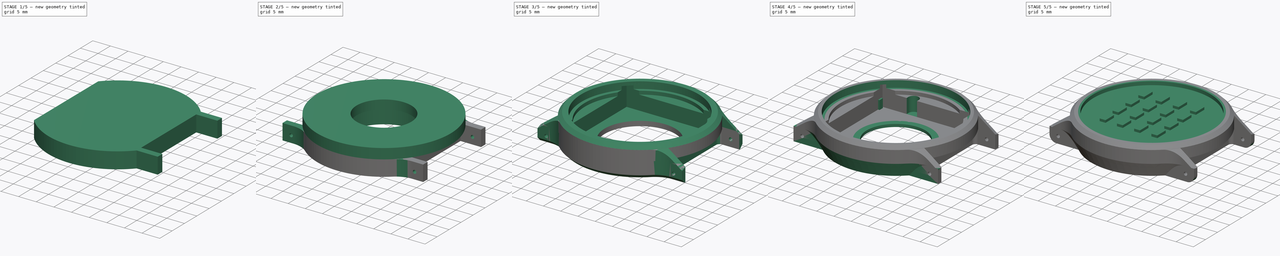
[diagram: build sequence overview — one tinted view per stage of 5, left to right]
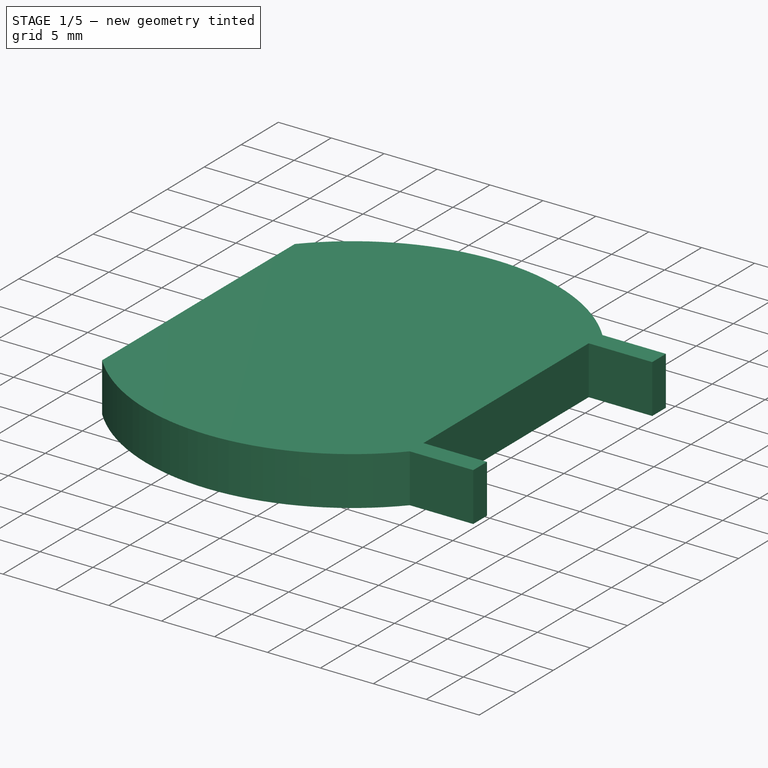
[diagram: stage 1 of 5 — iso view after this stage's code; geometry added in this stage tinted green]
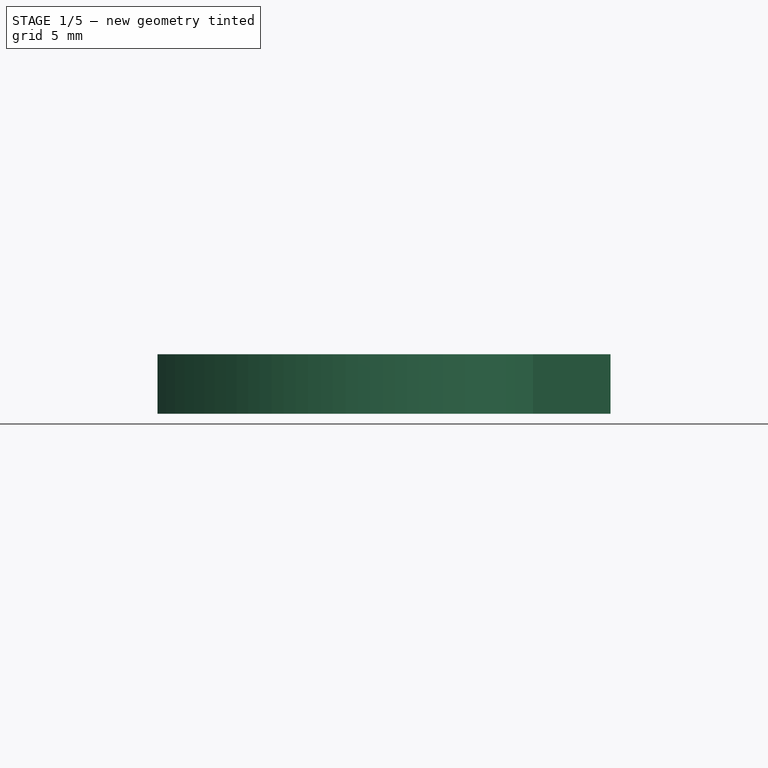
[diagram: stage 1 of 5 — front view after this stage's code; geometry added in this stage tinted green]
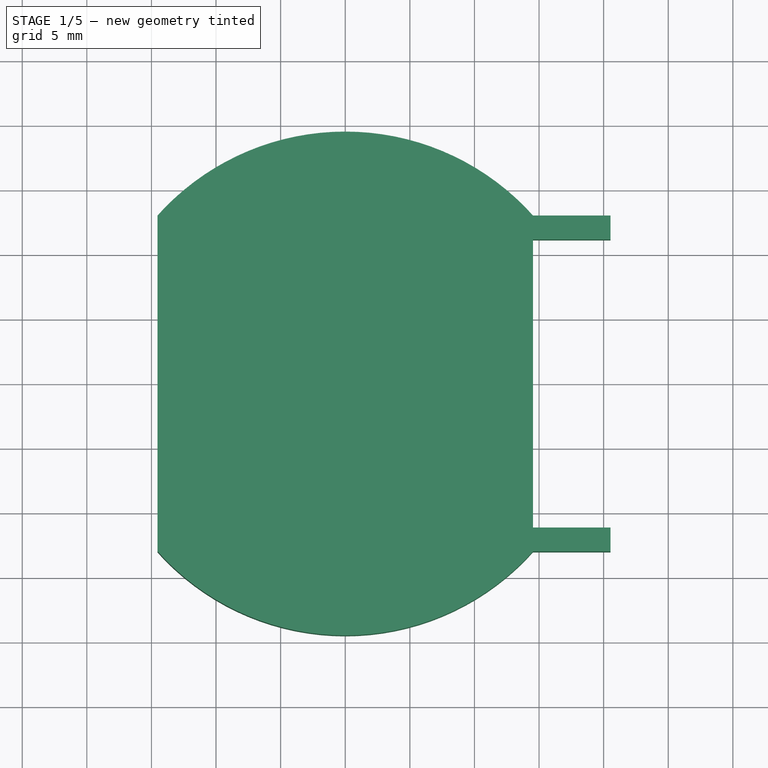
[diagram: stage 1 of 5 — top view after this stage's code; geometry added in this stage tinted green]
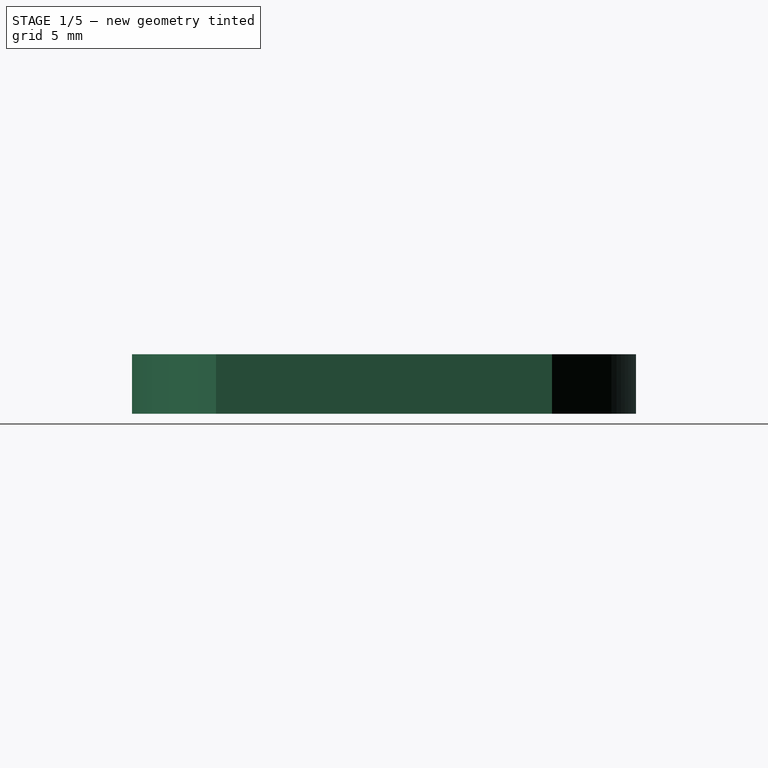
[diagram: stage 1 of 5 — right view after this stage's code; geometry added in this stage tinted green]
FCSTD DOCUMENT  (FreeCAD 0.20R)
Label: montre
License: All rights reserved
LicenseURL: https://en.wikipedia.org/wiki/All_rights_reserved
objects: Sketcher::SketchObject×34, PartDesign::Pad×17, PartDesign::Pocket×12, PartDesign::Body×5, PartDesign::Fillet×5, PartDesign::Plane×3, PartDesign::Chamfer×2, PartDesign::SubtractivePipe×2, PartDesign::Mirrored×1, PartDesign::Groove×1, PartDesign::LinearPattern×1
note: 122 computed .brp shape members not serialized (recipe doc carries the construction recipe); baked Part::Feature solids carry a one-line shape summary decoded from their .brp

FEATURE [Sketcher::SketchObject] Sketch
  FullyConstrained = true
  MapMode = 5
  Support = -> [XY_Plane]
  sketch-geometry (1):
    g0: Circle CenterX=0 CenterY=0 CenterZ=0 NormalX=0 NormalY=0 NormalZ=1 AngleXU=0 Radius=17
  constraints (2):
    c: Coincident(g0,g-1)
    c: Diameter(g0) = 34
FEATURE [PartDesign::Pad] Pad
  Direction = (0,0,1)
  Length = 1
  Length2 = 10
  Profile = -> Sketch
  ReferenceAxis = -> Sketch [N_Axis]
  Type = 0
FEATURE [Sketcher::SketchObject] Sketch001
  FullyConstrained = true
  MapMode = 5
  Support = -> [XY_Plane]
  sketch-geometry (8):
    g0: LineSegment StartX=1.5 StartY=9.25 StartZ=0 EndX=4.5 EndY=9.25 EndZ=0
    g1: LineSegment StartX=4.5 StartY=9.25 StartZ=0 EndX=4.5 EndY=13.75 EndZ=0
    g2: LineSegment StartX=4.5 StartY=13.75 StartZ=0 EndX=1.5 EndY=13.75 EndZ=0
    g3: LineSegment StartX=1.5 StartY=13.75 StartZ=0 EndX=1.5 EndY=9.25 EndZ=0
    g4: LineSegment StartX=0 StartY=-2.10381 StartZ=0 EndX=4.59619 EndY=-6.7 EndZ=0
    g5: LineSegment StartX=4.59619 StartY=-6.7 StartZ=0 EndX=0 EndY=-11.2962 EndZ=0
    g6: LineSegment StartX=0 StartY=-11.2962 StartZ=0 EndX=-4.59619 EndY=-6.7 EndZ=0
    g7: LineSegment StartX=-4.59619 StartY=-6.7 StartZ=0 EndX=0 EndY=-2.10381 EndZ=0
  constraints (24):
    c: Coincident(g0,g1)
    c: Coincident(g1,g2)
    c: Coincident(g2,g3)
    c: Coincident(g3,g0)
    c: Horizontal(g0)
    c: Horizontal(g2)
    c: Vertical(g1)
    c: Vertical(g3)
    c: PointOnObject(g4,g-2)
    c: Coincident(g5,g4)
    c: PointOnObject(g5,g-2)
    c: Coincident(g6,g5)
    c: Coincident(g7,g6)
    c: Coincident(g7,g4)
    c: Equal(g4,g5)
    c: Equal(g5,g6)
    c: Equal(g6,g7)
    c: Perpendicular(g7,g6)
    c: Distance(g6) = 6.5
    c: DistanceY(g-1,g6) = -6.7
    c: Distance(g2) = 3
    c: Distance(g3) = 4.5
    c: DistanceX(g-2,g2) = 1.5
    c: DistanceY(g-1,g0) = 9.25
FEATURE [PartDesign::Pad] Pad001
  BaseFeature = -> Pad
  Direction = (0,0,1)
  Length = 1.5
  Length2 = 10
  Profile = -> Sketch001
  ReferenceAxis = -> Sketch001 [N_Axis]
  Reversed = true
  Type = 0
FEATURE [PartDesign::Body] Body  label="PCB"
  Group = -> [Sketch,Pad,Sketch001,Pad001]
  Origin = -> Origin
  Tip = -> Pad001
FEATURE [PartDesign::Plane] DatumPlane
  AttachmentOffset = pos=(0,0,2) rot=(0,0,1;0rad)
  Length = 60
  MapMode = 5
  Placement = pos=(0,0,-2) rot=(1,0,0;3.14159rad)
  ResizeMode = 0
  Support = -> [Pad001]
  Width = 60
FEATURE [Sketcher::SketchObject] Sketch002
  FullyConstrained = true
  MapMode = 5
  Placement = pos=(0,0,-2) rot=(1,0,0;3.14159rad)
  Support = -> [DatumPlane]
  sketch-geometry (4):
    g0: LineSegment StartX=-11.75 StartY=11.75 StartZ=0 EndX=11.75 EndY=11.75 EndZ=0
    g1: LineSegment StartX=11.75 StartY=11.75 StartZ=0 EndX=11.75 EndY=-11.75 EndZ=0
    g2: LineSegment StartX=11.75 StartY=-11.75 StartZ=0 EndX=-11.75 EndY=-11.75 EndZ=0
    g3: LineSegment StartX=-11.75 StartY=-11.75 StartZ=0 EndX=-11.75 EndY=11.75 EndZ=0
  constraints (12):
    c: Coincident(g0,g1)
    c: Coincident(g1,g2)
    c: Coincident(g2,g3)
    c: Coincident(g3,g0)
    c: Horizontal(g0)
    c: Horizontal(g2)
    c: Vertical(g1)
    c: Vertical(g3)
    c: Distance(g1) = 23.5
    c: Equal(g1,g2)
    c: DistanceX(g-2,g2) = -11.75
    c: DistanceY(g-1,g1) = -11.75
FEATURE [PartDesign::Pad] Pad002
  Direction = (0,0,-1)
  Length = 3.2
  Length2 = 10
  Placement = pos=(0,0,-2) rot=(1,0,0;3.14159rad)
  Profile = -> Sketch002
  ReferenceAxis = -> Sketch002 [N_Axis]
  Type = 0
FEATURE [PartDesign::Plane] DatumPlane001
  AttachmentOffset = pos=(0,0,1) rot=(0,0,1;0rad)
  Length = 60
  MapMode = 5
  Placement = pos=(0,0,-6.2) rot=(1,0,0;3.14159rad)
  ResizeMode = 0
  Support = -> [Pad002]
  Width = 60
FEATURE [Sketcher::SketchObject] Sketch003
  FullyConstrained = true
  MapMode = 5
  Placement = pos=(0,0,-6.2) rot=(1,0,0;3.14159rad)
  Support = -> [DatumPlane001]
  sketch-geometry (1):
    g0: Circle CenterX=0 CenterY=0 CenterZ=0 NormalX=0 NormalY=0 NormalZ=1 AngleXU=0 Radius=10
  constraints (2):
    c: Coincident(g0,g-1)
    c: Diameter(g0) = 20
FEATURE [PartDesign::Pad] Pad003
  Direction = (0,1e-16,-1)
  Length = 0.4
  Length2 = 10
  Placement = pos=(0,1e-15,-6.2) rot=(1,0,0;3.14159rad)
  Profile = -> Sketch003
  ReferenceAxis = -> Sketch003 [N_Axis]
  Type = 0
FEATURE [PartDesign::Fillet] Fillet
  Base = -> Pad002 [Edge2,Edge5,Edge8,Edge1]
  BaseFeature = -> Pad002
  Placement = pos=(0,0,-2) rot=(1,0,0;3.14159rad)
  Radius = 1
  SupportTransform = false
  UseAllEdges = false
FEATURE [PartDesign::Body] Body001  label="battery"
  Group = -> [DatumPlane,Sketch002,Pad002,Fillet]
  Origin = -> Origin001
  Tip = -> Fillet
FEATURE [Sketcher::SketchObject] Sketch004
  FullyConstrained = true
  MapMode = 2
  Placement = pos=(0,1e-15,-6.2) rot=(1,0,0;3.14159rad)
  Support = -> [Pad003]
  sketch-geometry (5):
    g0: LineSegment StartX=1 StartY=-1.5 StartZ=0 EndX=1 EndY=1.5 EndZ=0
    g1: LineSegment StartX=1 StartY=1.5 StartZ=0 EndX=-1 EndY=1.5 EndZ=0
    g2: LineSegment StartX=-1 StartY=1.5 StartZ=0 EndX=-1 EndY=-1.5 EndZ=0
    g3: LineSegment StartX=-1 StartY=-1.5 StartZ=0 EndX=1 EndY=-1.5 EndZ=0
    g4: GeomPoint X=0 Y=0 Z=0
  constraints (12):
    c: Coincident(g0,g1)
    c: Coincident(g1,g2)
    c: Coincident(g2,g3)
    c: Coincident(g3,g0)
    c: Horizontal(g1)
    c: Horizontal(g3)
    c: Vertical(g0)
    c: Vertical(g2)
    c: Symmetric(g1,g0,g4)
    c: Coincident(g4,g-1)
    c: Distance(g1) = 2
    c: Distance(g0) = 3
FEATURE [PartDesign::Pad] Pad004
  BaseFeature = -> Pad003
  Direction = (0,1e-16,-1)
  Length = 1
  Length2 = 10
  Placement = pos=(0,1e-15,-6.2) rot=(1,0,0;3.14159rad)
  Profile = -> Sketch004
  ReferenceAxis = -> Sketch004 [N_Axis]
  Reversed = true
  Type = 0
FEATURE [PartDesign::Body] Body002  label="wireless receiver"
  Group = -> [DatumPlane001,Sketch003,Pad003,Sketch004,Pad004]
  Origin = -> Origin002
  Tip = -> Pad004
FEATURE [PartDesign::Plane] DatumPlane006
  Length = 60
  MapMode = 5
  Placement = pos=(0,1e-15,-6.6) rot=(1,0,0;3.14159rad)
  ResizeMode = 0
  Support = -> [Pad004]
  Width = 60
FEATURE [Sketcher::SketchObject] Sketch016
  FullyConstrained = true
  MapMode = 5
  Placement = pos=(0,1e-15,-6.6) rot=(1,0,0;3.14159rad)
  Support = -> [DatumPlane006]
  sketch-geometry (4):
    g0: ArcOfCircle CenterX=0 CenterY=0 CenterZ=0 NormalX=0 NormalY=0 NormalZ=1 AngleXU=0 Radius=19.5 StartAngle=3.87132 EndAngle=5.55346
    g1: LineSegment StartX=-14.5344 StartY=13 StartZ=0 EndX=-14.5344 EndY=-13 EndZ=0
    g2: LineSegment StartX=14.5344 StartY=13 StartZ=0 EndX=14.5344 EndY=-13 EndZ=0
    g3: ArcOfCircle CenterX=0 CenterY=0 CenterZ=0 NormalX=0 NormalY=0 NormalZ=1 AngleXU=0 Radius=19.5 StartAngle=0.729728 EndAngle=2.41186
  constraints (12):
    c: Coincident(g0,g-1)
    c: Diameter(g0) = 39
    c: Vertical(g1)
    c: Coincident(g3,g1)
    c: Coincident(g0,g1)
    c: Vertical(g2)
    c: Equal(g0,g3)
    c: Coincident(g0,g2)
    c: Coincident(g3,g2)
    c: Coincident(g0,g3)
    c: Symmetric(g2,g1,g-2)
    c: Distance(g1) = 26
FEATURE [PartDesign::Pad] Pad012
  Direction = (0,1e-16,-1)
  Length = 10
  Length2 = 10
  Placement = pos=(0,1e-15,-6.6) rot=(1,0,0;3.14159rad)
  Profile = -> Sketch016
  ReferenceAxis = -> Sketch016 [N_Axis]
  Type = 3
  UpToFace = -> Fillet [Face2]
FEATURE [Sketcher::SketchObject] Sketch017
  ExternalGeometry = -> [Pad012]
  FullyConstrained = true
  MapMode = 5
  Placement = pos=(14.5344,1e-15,-6.6) rot=(0.57735,-0.57735,0.57735;4.18879rad)
  Support = -> [Pad012]
  sketch-geometry (8):
    g0: LineSegment StartX=-13 StartY=0 StartZ=0 EndX=-11.15 EndY=0 EndZ=0
    g1: LineSegment StartX=-11.15 StartY=0 StartZ=0 EndX=-11.15 EndY=-4.6 EndZ=0
    g2: LineSegment StartX=-11.15 StartY=-4.6 StartZ=0 EndX=-13 EndY=-4.6 EndZ=0
    g3: LineSegment StartX=-13 StartY=-4.6 StartZ=0 EndX=-13 EndY=0 EndZ=0
    g4: LineSegment StartX=13 StartY=-1.8e-15 StartZ=0 EndX=11.15 EndY=-1.8e-15 EndZ=0
    g5: LineSegment StartX=11.15 StartY=-1.8e-15 StartZ=0 EndX=11.15 EndY=-4.6 EndZ=0
    g6: LineSegment StartX=11.15 StartY=-4.6 StartZ=0 EndX=13 EndY=-4.6 EndZ=0
    g7: LineSegment StartX=13 StartY=-4.6 StartZ=0 EndX=13 EndY=-1.8e-15 EndZ=0
  constraints (21):
    c: Coincident(g0,g1)
    c: Coincident(g1,g2)
    c: Coincident(g2,g3)
    c: Coincident(g3,g0)
    c: Horizontal(g0)
    c: Horizontal(g2)
    c: Vertical(g1)
    c: Vertical(g3)
    c: PointOnObject(g0,g-1)
    c: Coincident(g4,g5)
    c: Coincident(g5,g6)
    c: Coincident(g6,g7)
    c: Coincident(g7,g4)
    c: Horizontal(g4)
    c: Horizontal(g6)
    c: Vertical(g5)
    c: Equal(g6,g2)
    c: Coincident(g4,g-4)
    c: Coincident(g6,g-4)
    c: Coincident(g2,g-3)
    c: Distance(g0,g4) = 22.3
FEATURE [PartDesign::Pad] Pad013
  BaseFeature = -> Pad012
  Direction = (1,0,0)
  Length = 6
  Length2 = 10
  Placement = pos=(0,1e-15,-6.6) rot=(1,0,0;3.14159rad)
  Profile = -> Sketch017
  ReferenceAxis = -> Sketch017 [N_Axis]
  Type = 0
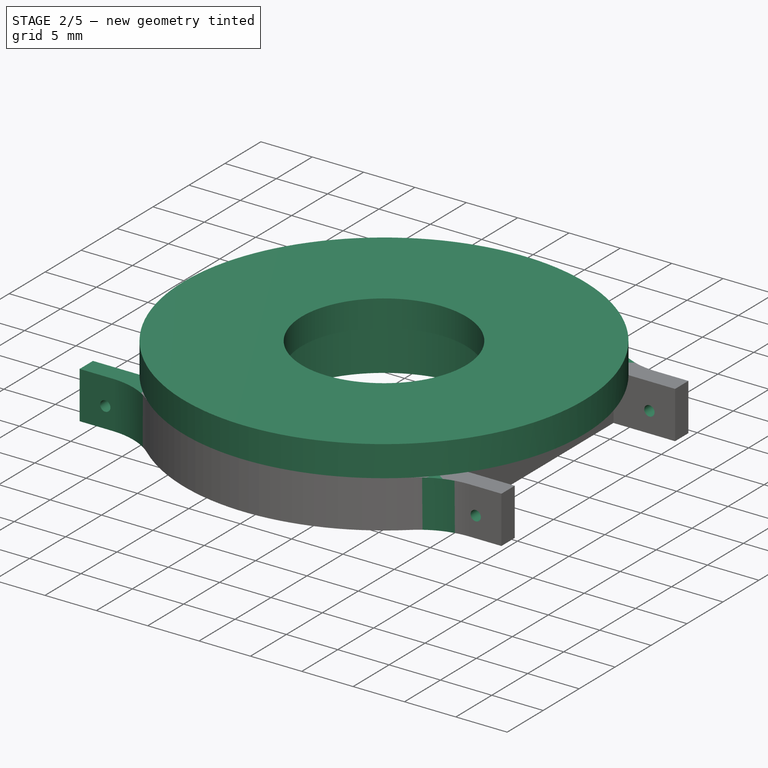
[diagram: stage 2 of 5 — iso view after this stage's code; geometry added in this stage tinted green]
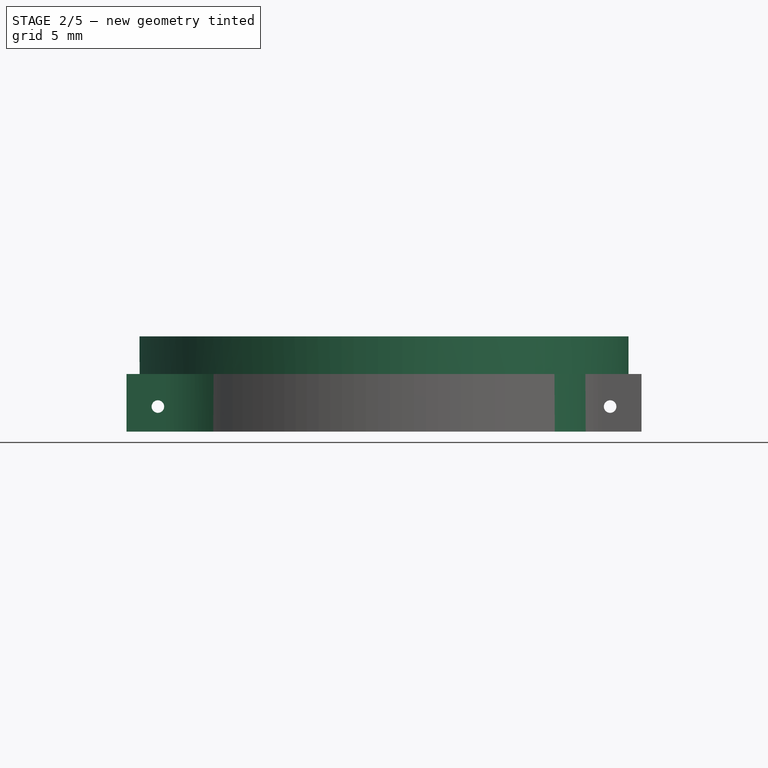
[diagram: stage 2 of 5 — front view after this stage's code; geometry added in this stage tinted green]
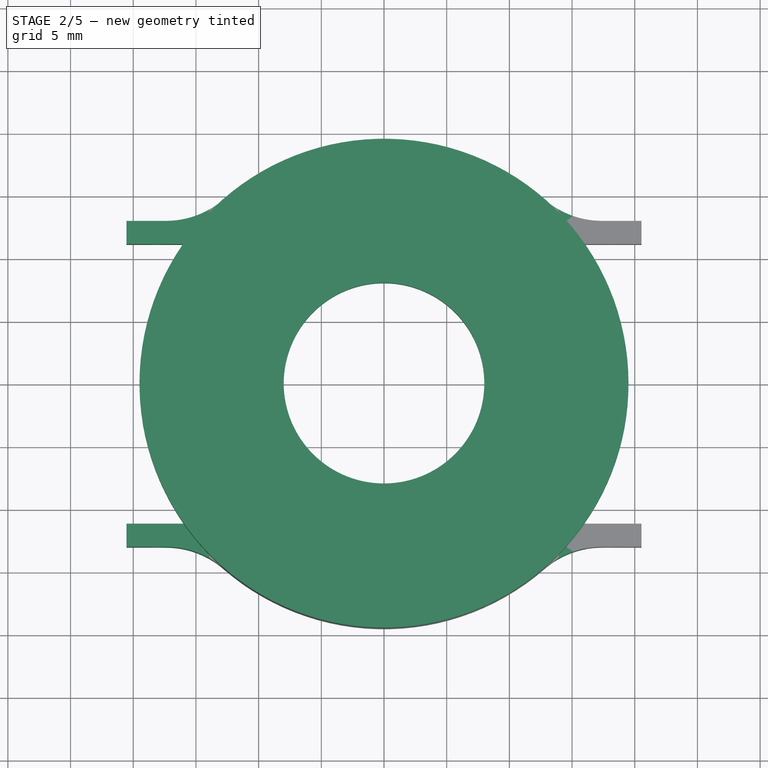
[diagram: stage 2 of 5 — top view after this stage's code; geometry added in this stage tinted green]
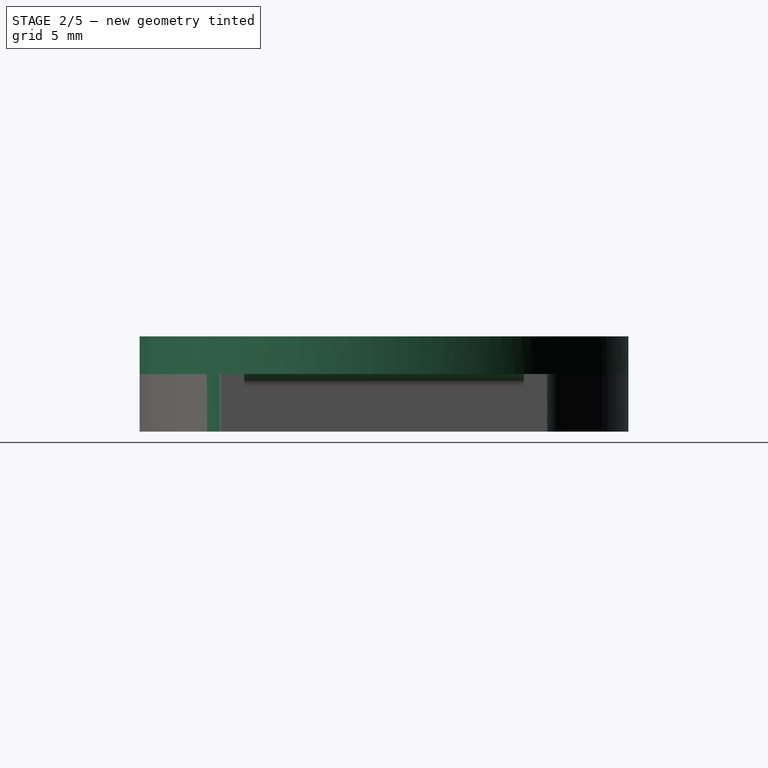
[diagram: stage 2 of 5 — right view after this stage's code; geometry added in this stage tinted green]
FEATURE [PartDesign::Mirrored] Mirrored002
  BaseFeature = -> Pad013
  MirrorPlane = -> YZ_Plane005
  Originals = -> [Pad013]
  Placement = pos=(0,1e-15,-6.6) rot=(1,0,0;3.14159rad)
FEATURE [Sketcher::SketchObject] Sketch018
  ExternalGeometry = -> [Mirrored002]
  FullyConstrained = true
  MapMode = 5
  Placement = pos=(0,13,-6.6) rot=(-1,0,0;1.5708rad)
  Support = -> [Mirrored002]
  sketch-geometry (3):
    g0: Circle CenterX=-18.0344 CenterY=-2 CenterZ=0 NormalX=0 NormalY=0 NormalZ=1 AngleXU=0 Radius=0.5
    g1: Circle CenterX=18.0344 CenterY=-2 CenterZ=0 NormalX=0 NormalY=0 NormalZ=1 AngleXU=0 Radius=0.5
    g2: LineSegment StartX=-18.0344 StartY=0 StartZ=0 EndX=-18.0344 EndY=-4.6 EndZ=0
  constraints (9):
    c: Equal(g0,g1)
    c: Symmetric(g0,g1,g-2)
    c: Diameter(g0) = 1
    c: PointOnObject(g2,g-1)
    c: PointOnObject(g2,g-4)
    c: Vertical(g2)
    c: Distance(g-4,g2) = 3.5
    c: PointOnObject(g0,g2)
    c: Distance(g0,g2) = 2
FEATURE [PartDesign::Pocket] Pocket002
  BaseFeature = -> Mirrored002
  Direction = (0,-1,2e-16)
  Length = 5
  Length2 = 5
  Placement = pos=(0,1e-15,-6.6) rot=(1,0,0;3.14159rad)
  Profile = -> Sketch018
  ReferenceAxis = -> Sketch018 [N_Axis]
  Type = 1
FEATURE [Sketcher::SketchObject] Sketch019
  ExternalGeometry = -> [Pocket002]
  FullyConstrained = true
  MapMode = 5
  Placement = pos=(0,2.5e-15,-2) rot=(0,0,1;0rad)
  Support = -> [Pocket002]
  sketch-geometry (1):
    g0: Circle CenterX=0 CenterY=0 CenterZ=0 NormalX=0 NormalY=0 NormalZ=1 AngleXU=0 Radius=19.5
  constraints (3):
    c: PointOnObject(g0,g-1)
    c: PointOnObject(g0,g-2)
    c: PointOnObject(g-3,g0)
FEATURE [PartDesign::Pad] Pad014
  BaseFeature = -> Pocket002
  Direction = (0,7e-16,1)
  Length = 10
  Length2 = 10
  Placement = pos=(0,1e-15,-6.6) rot=(1,0,0;3.14159rad)
  Profile = -> Sketch019
  ReferenceAxis = -> Sketch019 [N_Axis]
  Type = 3
  UpToFace = -> Pad001 [Face3]
FEATURE [PartDesign::Fillet] Fillet005
  Base = -> Pad014 [Edge39,Edge2,Edge4,Edge38]
  BaseFeature = -> Pad014
  Placement = pos=(0,1e-15,-6.6) rot=(1,0,0;3.14159rad)
  Radius = 7
  SupportTransform = false
  UseAllEdges = false
FEATURE [Sketcher::SketchObject] Sketch020
  FullyConstrained = true
  MapMode = 5
  Placement = pos=(0,1e-15,-6.6) rot=(1,0,0;3.14159rad)
  Support = -> [Fillet005]
  sketch-geometry (1):
    g0: Circle CenterX=0 CenterY=0 CenterZ=0 NormalX=0 NormalY=0 NormalZ=1 AngleXU=0 Radius=8
  constraints (2):
    c: Coincident(g0,g-1)
    c: Diameter(g0) = 16
FEATURE [PartDesign::Pocket] Pocket003
  BaseFeature = -> Fillet005
  Direction = (0,8e-16,1)
  Length = 5
  Length2 = 5
  Placement = pos=(0,1e-15,-6.6) rot=(1,0,0;3.14159rad)
  Profile = -> Sketch020
  ReferenceAxis = -> Sketch020 [N_Axis]
  Type = 1
FEATURE [Sketcher::SketchObject] Sketch021
  FullyConstrained = true
  MapMode = 5
  Placement = pos=(0,1e-15,-6.6) rot=(1,0,0;3.14159rad)
  Support = -> [Pocket003]
  sketch-geometry (1):
    g0: Circle CenterX=0 CenterY=0 CenterZ=0 NormalX=0 NormalY=0 NormalZ=1 AngleXU=0 Radius=10.25
  constraints (2):
    c: Coincident(g0,g-1)
    c: Diameter(g0) = 20.5
FEATURE [PartDesign::Pocket] Pocket004
  BaseFeature = -> Pocket003
  Direction = (0,1e-15,1)
  Length = 5
  Length2 = 5
  Placement = pos=(0,1e-15,-6.6) rot=(1,0,0;3.14159rad)
  Profile = -> Sketch021
  ReferenceAxis = -> Sketch021 [N_Axis]
  Type = 0
FEATURE [PartDesign::Fillet] Fillet006
  Base = -> Pocket004 [Edge44]
  BaseFeature = -> Pocket004
  Placement = pos=(0,1e-15,-6.6) rot=(1,0,0;3.14159rad)
  Radius = 1
  SupportTransform = false
  UseAllEdges = false
FEATURE [PartDesign::Fillet] Fillet007
  Base = -> Fillet006 [Edge53]
  BaseFeature = -> Fillet006
  Placement = pos=(0,1e-15,-6.6) rot=(1,0,0;3.14159rad)
  Radius = 1
  SupportTransform = false
  UseAllEdges = false
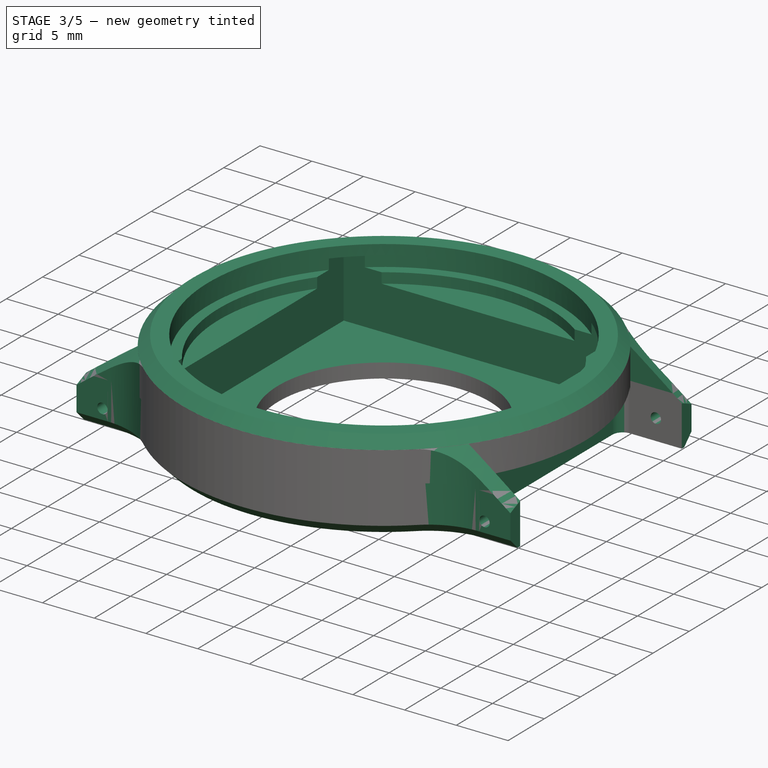
[diagram: stage 3 of 5 — iso view after this stage's code; geometry added in this stage tinted green]
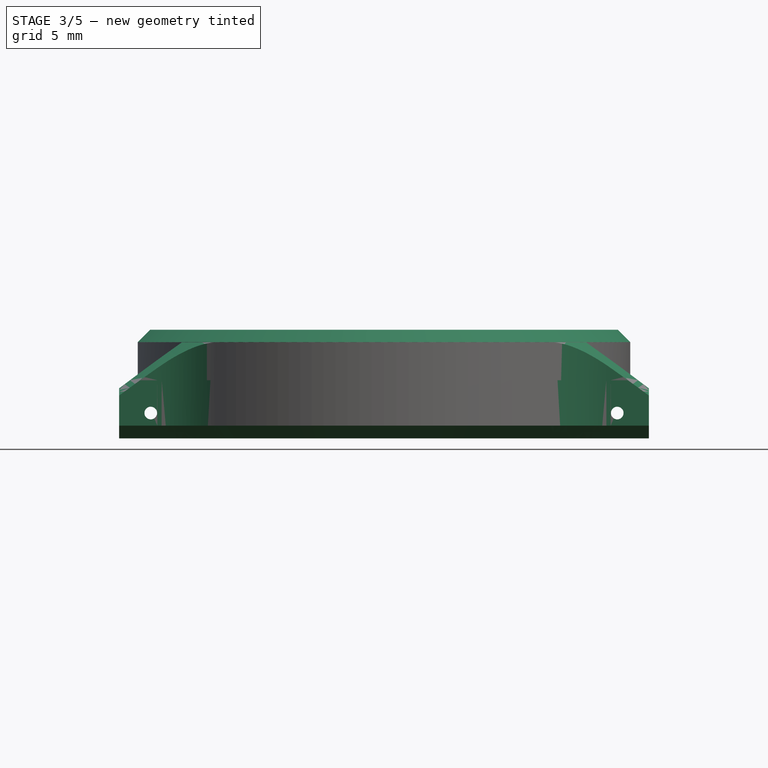
[diagram: stage 3 of 5 — front view after this stage's code; geometry added in this stage tinted green]
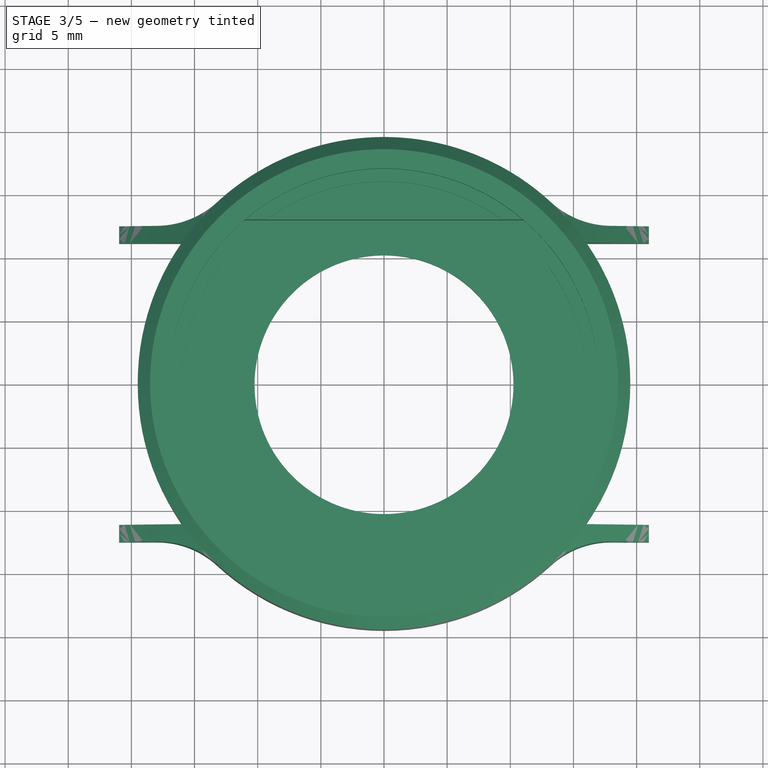
[diagram: stage 3 of 5 — top view after this stage's code; geometry added in this stage tinted green]
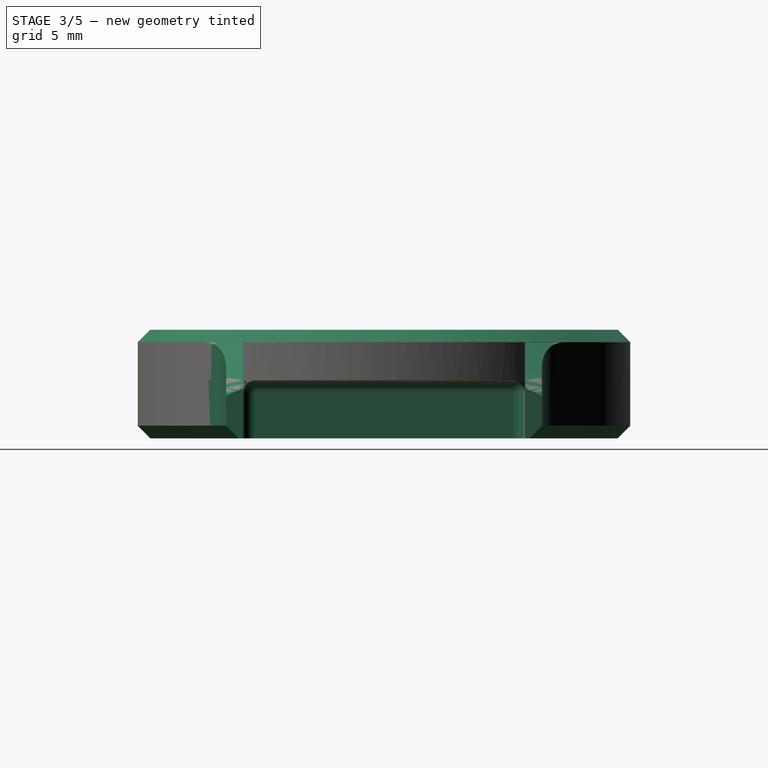
[diagram: stage 3 of 5 — right view after this stage's code; geometry added in this stage tinted green]
FEATURE [PartDesign::Fillet] Fillet008
  Base = -> Fillet007 [Edge4,Edge1,Edge55,Edge53]
  BaseFeature = -> Fillet007
  Placement = pos=(0,1e-15,-6.6) rot=(1,0,0;3.14159rad)
  Radius = 1
  SupportTransform = false
  UseAllEdges = false
FEATURE [PartDesign::Chamfer] Chamfer
  Angle = 45
  Base = -> Fillet008 [Edge25,Edge18]
  BaseFeature = -> Fillet008
  ChamferType = 0
  FlipDirection = false
  Placement = pos=(0,1e-15,-6.6) rot=(1,0,0;3.14159rad)
  Size = 1
  Size2 = 1
  SupportTransform = false
  UseAllEdges = false
FEATURE [Sketcher::SketchObject] Sketch022
  ExternalGeometry = -> [Chamfer]
  FullyConstrained = true
  MapMode = 5
  Placement = pos=(0,2.5e-15,-2) rot=(0,0,1;0rad)
  Support = -> [Chamfer]
  sketch-geometry (20):
    g0: ArcOfCircle CenterX=17.3853 CenterY=-20 CenterZ=0 NormalX=0 NormalY=0 NormalZ=1 AngleXU=0 Radius=7 StartAngle=1.5708 EndAngle=2.28637
    g1: ArcOfCircle CenterX=17.3853 CenterY=20 CenterZ=0 NormalX=0 NormalY=0 NormalZ=1 AngleXU=0 Radius=7 StartAngle=3.99682 EndAngle=4.71239
    g2: LineSegment StartX=17.3853 StartY=13 StartZ=0 EndX=20.5344 EndY=13 EndZ=0
    g3: LineSegment StartX=20.5344 StartY=13 StartZ=0 EndX=20.5344 EndY=11.15 EndZ=0
    g4: LineSegment StartX=20.5344 StartY=11.15 StartZ=0 EndX=15.9977 EndY=11.15 EndZ=0
    g5: LineSegment StartX=17.3853 StartY=-13 StartZ=0 EndX=20.5344 EndY=-13 EndZ=0
    g6: LineSegment StartX=20.5344 StartY=-13 StartZ=0 EndX=20.5344 EndY=-11.15 EndZ=0
    g7: LineSegment StartX=20.5344 StartY=-11.15 StartZ=0 EndX=15.9977 EndY=-11.15 EndZ=0
    g8: ArcOfCircle CenterX=-3.794e-13 CenterY=3.307e-13 CenterZ=0 NormalX=0 NormalY=0 NormalZ=1 AngleXU=0 Radius=19.5 StartAngle=0.608692 EndAngle=0.855223
    g9: ArcOfCircle CenterX=-3.781e-13 CenterY=-3.26e-13 CenterZ=0 NormalX=0 NormalY=0 NormalZ=1 AngleXU=0 Radius=19.5 StartAngle=5.42796 EndAngle=5.67449
    g10: LineSegment StartX=-15.9977 StartY=-11.15 StartZ=0 EndX=-20.5344 EndY=-11.15 EndZ=0
    g11: LineSegment StartX=-20.5344 StartY=-11.15 StartZ=0 EndX=-20.5344 EndY=-13 EndZ=0
    g12: LineSegment StartX=-20.5344 StartY=-13 StartZ=0 EndX=-17.3853 EndY=-13 EndZ=0
    g13: ArcOfCircle CenterX=-17.3853 CenterY=-20 CenterZ=0 NormalX=0 NormalY=0 NormalZ=1 AngleXU=0 Radius=7 StartAngle=0.855223 EndAngle=1.5708
    g14: ArcOfCircle CenterX=5.863e-13 CenterY=-4.606e-13 CenterZ=0 NormalX=0 NormalY=0 NormalZ=1 AngleXU=0 Radius=19.5 StartAngle=3.75028 EndAngle=3.99682
    g15: ArcOfCircle CenterX=6.636e-13 CenterY=5.705e-13 CenterZ=0 NormalX=0 NormalY=0 NormalZ=1 AngleXU=0 Radius=19.5 StartAngle=2.28637 EndAngle=2.5329
    g16: LineSegment StartX=-17.3853 StartY=13 StartZ=0 EndX=-20.5344 EndY=13 EndZ=0
    g17: LineSegment StartX=-20.5344 StartY=13 StartZ=0 EndX=-20.5344 EndY=11.15 EndZ=0
    g18: LineSegment StartX=-20.5344 StartY=11.15 StartZ=0 EndX=-15.9977 EndY=11.15 EndZ=0
    g19: ArcOfCircle CenterX=-17.3853 CenterY=20 CenterZ=0 NormalX=0 NormalY=0 NormalZ=1 AngleXU=0 Radius=7 StartAngle=4.71239 EndAngle=5.4282
  constraints (48):
    c: Coincident(g0,g-4)
    c: Coincident(g0,g-4)
    c: Coincident(g1,g-10)
    c: Coincident(g1,g-10)
    c: Coincident(g2,g1)
    c: Coincident(g2,g-9)
    c: Coincident(g3,g2)
    c: Coincident(g3,g-9)
    c: Coincident(g4,g3)
    c: Coincident(g4,g-7)
    c: Coincident(g5,g0)
    c: Coincident(g5,g-6)
    c: Coincident(g6,g5)
    c: Coincident(g6,g-6)
    c: Coincident(g7,g6)
    c: Coincident(g7,g-3)
    c: Coincident(g8,g1)
    c: Coincident(g8,g4)
    c: Coincident(g9,g7)
    c: Coincident(g9,g0)
    c: Equal(g-11,g9)
    c: Equal(g8,g-11)
    c: Coincident(g10,g-16)
    c: Coincident(g10,g-16)
    c: Coincident(g11,g10)
    c: Coincident(g11,g-14)
    c: Coincident(g12,g11)
    c: Coincident(g12,g-15)
    c: Coincident(g13,g12)
    c: Coincident(g13,g-15)
    c: Coincident(g14,g10)
    c: Coincident(g14,g13)
    c: Equal(g14,g-11)
    c: Equal(g13,g-15)
    c: Coincident(g15,g-12)
    c: Equal(g15,g-11)
    c: Horizontal(g2)
    c: Horizontal(g5)
    c: Coincident(g15,g-17)
    c: Coincident(g16,g-12)
    c: Coincident(g16,g-13)
    c: Coincident(g17,g16)
    c: Coincident(g17,g-17)
    c: Coincident(g18,g17)
    c: Coincident(g18,g15)
    c: Coincident(g19,g-12)
    c: Coincident(g19,g16)
    c: Coincident(g19,g15)
FEATURE [PartDesign::Pad] Pad015
  BaseFeature = -> Chamfer
  Direction = (0,1.1e-15,1)
  Length = 10
  Length2 = 10
  Placement = pos=(0,1e-15,-6.6) rot=(1,0,0;3.14159rad)
  Profile = -> Sketch022
  ReferenceAxis = -> Sketch022 [N_Axis]
  Type = 3
  UpToFace = -> Chamfer [Face68]
FEATURE [Sketcher::SketchObject] Sketch023
  ExternalGeometry = -> [Pad015]
  FullyConstrained = true
  MapMode = 5
  Placement = pos=(0,0,0) rot=(1,0,0;1.5708rad)
  Support = -> [XZ_Plane005]
  sketch-geometry (3):
    g0: LineSegment StartX=-19.5 StartY=1 StartZ=0 EndX=-26.5 EndY=1 EndZ=0
    g1: LineSegment StartX=-26.5 StartY=1 StartZ=0 EndX=-26.5 EndY=-5 EndZ=0
    g2: LineSegment StartX=-26.5 StartY=-5 StartZ=0 EndX=-19.5 EndY=1 EndZ=0
  constraints (8):
    c: Coincident(g0,g-3)
    c: Horizontal(g0)
    c: Coincident(g1,g0)
    c: Vertical(g1)
    c: Coincident(g2,g1)
    c: Coincident(g2,g0)
    c: Distance(g0) = 7
    c: Distance(g1) = 6
FEATURE [PartDesign::Groove] Groove002
  Angle = 360
  Axis = (0,2e-16,1)
  Base = (0,0,0)
  BaseFeature = -> Pad015
  Placement = pos=(0,1e-15,-6.6) rot=(1,0,0;3.14159rad)
  Profile = -> Sketch023
  ReferenceAxis = -> Sketch023 [V_Axis]
  Reversed = true
FEATURE [Sketcher::SketchObject] Sketch024
  FullyConstrained = true
  MapMode = 5
  Placement = pos=(0,3.4e-15,1) rot=(0,0,1;0rad)
  Support = -> [Groove002]
  sketch-geometry (5):
    g0: LineSegment StartX=13 StartY=-13 StartZ=0 EndX=13 EndY=13 EndZ=0
    g1: LineSegment StartX=13 StartY=13 StartZ=0 EndX=-13 EndY=13 EndZ=0
    g2: LineSegment StartX=-13 StartY=13 StartZ=0 EndX=-13 EndY=-13 EndZ=0
    g3: LineSegment StartX=-13 StartY=-13 StartZ=0 EndX=13 EndY=-13 EndZ=0
    g4: GeomPoint X=0 Y=0 Z=0
  constraints (12):
    c: Coincident(g0,g1)
    c: Coincident(g1,g2)
    c: Coincident(g2,g3)
    c: Coincident(g3,g0)
    c: Horizontal(g1)
    c: Horizontal(g3)
    c: Vertical(g0)
    c: Vertical(g2)
    c: Symmetric(g1,g0,g4)
    c: Coincident(g4,g-1)
    c: Equal(g1,g2)
    c: Distance(g2) = 26
FEATURE [PartDesign::Pocket] Pocket005
  BaseFeature = -> Groove002
  Direction = (0,-1.1e-15,-1)
  Length = 0
  Length2 = 5
  Placement = pos=(0,1e-15,-6.6) rot=(1,0,0;3.14159rad)
  Profile = -> Sketch024
  ReferenceAxis = -> Sketch024 [N_Axis]
  Type = 3
  UpToFace = -> Fillet [Face5]
FEATURE [Sketcher::SketchObject] Sketch025
  FullyConstrained = true
  MapMode = 5
  Placement = pos=(0,3.4e-15,1) rot=(0,0,1;0rad)
  Support = -> [Pocket005]
  sketch-geometry (1):
    g0: Circle CenterX=0 CenterY=0 CenterZ=0 NormalX=0 NormalY=0 NormalZ=1 AngleXU=0 Radius=17
  constraints (2):
    c: Coincident(g0,g-1)
    c: Diameter(g0) = 34
FEATURE [PartDesign::Pocket] Pocket006
  BaseFeature = -> Pocket005
  Direction = (0,-1.3e-15,-1)
  Length = 1
  Length2 = 5
  Placement = pos=(0,1e-15,-6.6) rot=(1,0,0;3.14159rad)
  Profile = -> Sketch025
  ReferenceAxis = -> Sketch025 [N_Axis]
  Type = 0
FEATURE [Sketcher::SketchObject] Sketch026
  FullyConstrained = true
  MapMode = 5
  Placement = pos=(0,3.4e-15,1) rot=(0,0,1;0rad)
  Support = -> [Pocket006]
  sketch-geometry (1):
    g0: Circle CenterX=0 CenterY=0 CenterZ=0 NormalX=0 NormalY=0 NormalZ=1 AngleXU=0 Radius=16
  constraints (2):
    c: Coincident(g0,g-1)
    c: Diameter(g0) = 32
FEATURE [PartDesign::Pocket] Pocket007
  BaseFeature = -> Pocket006
  Direction = (0,-1.6e-15,-1)
  Length = 2
  Length2 = 5
  Placement = pos=(0,1e-15,-6.6) rot=(1,0,0;3.14159rad)
  Profile = -> Sketch026
  ReferenceAxis = -> Sketch026 [N_Axis]
  Type = 0
FEATURE [PartDesign::Body] Body006  label="led"
  Group = -> [Sketch027,Pad016,LinearPattern]
  Origin = -> Origin006
  Tip = -> LinearPattern
FEATURE [Sketcher::SketchObject] Sketch028
  ExternalGeometry = -> [Pocket007]
  FullyConstrained = true
  MapMode = 5
  Placement = pos=(0,3.4e-15,1) rot=(0,0,1;0rad)
  Support = -> [Pocket007]
  sketch-geometry (2):
    g0: Circle CenterX=0 CenterY=0 CenterZ=0 NormalX=0 NormalY=0 NormalZ=1 AngleXU=0 Radius=19.5
    g1: Circle CenterX=0 CenterY=0 CenterZ=0 NormalX=0 NormalY=0 NormalZ=1 AngleXU=0 Radius=17
  constraints (4):
    c: Coincident(g0,g-1)
    c: Coincident(g1,g0)
    c: PointOnObject(g-4,g0)
    c: PointOnObject(g-5,g1)
FEATURE [PartDesign::Pad] Pad017
  BaseFeature = -> Pocket007
  Direction = (0,1.8e-15,1)
  Length = 1
  Length2 = 10
  Placement = pos=(0,1e-15,-6.6) rot=(1,0,0;3.14159rad)
  Profile = -> Sketch028
  ReferenceAxis = -> Sketch028 [N_Axis]
  Type = 0
FEATURE [PartDesign::Chamfer] Chamfer001
  Angle = 45
  Base = -> Pad017 [Edge251]
  BaseFeature = -> Pad017
  ChamferType = 0
  FlipDirection = false
  Placement = pos=(0,1e-15,-6.6) rot=(1,0,0;3.14159rad)
  Size = 0.98
  Size2 = 1
  SupportTransform = false
  UseAllEdges = false
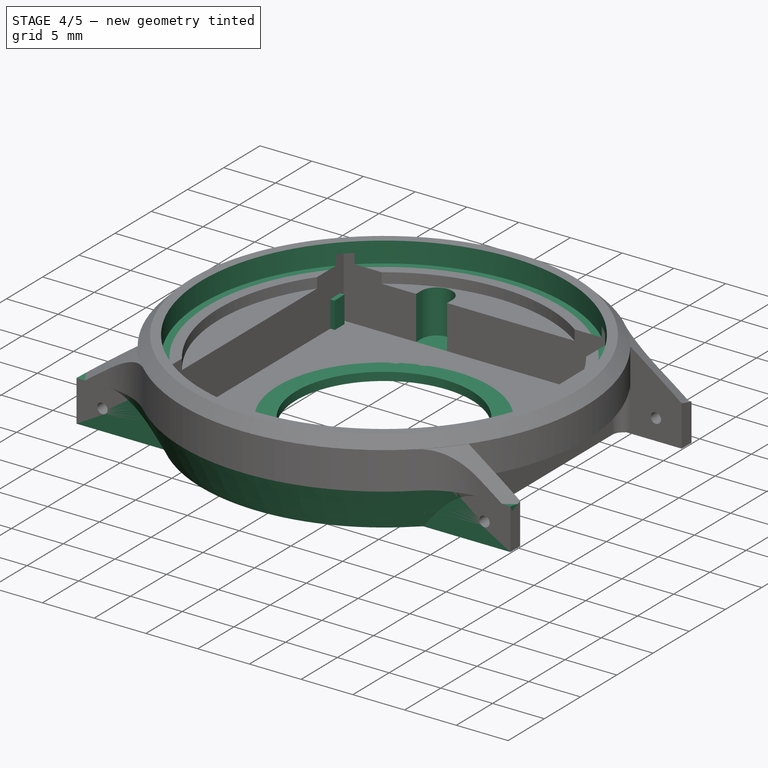
[diagram: stage 4 of 5 — iso view after this stage's code; geometry added in this stage tinted green]
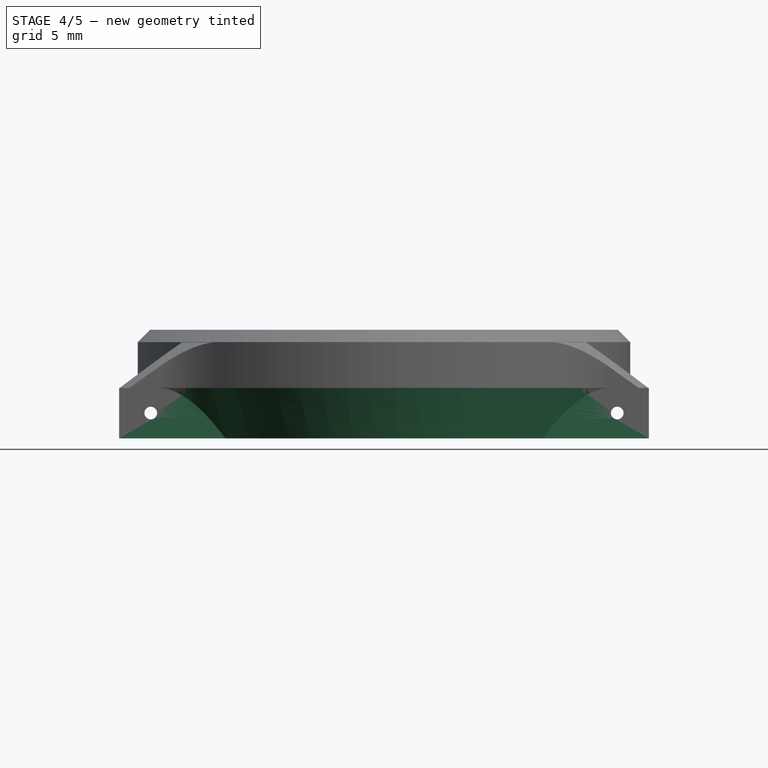
[diagram: stage 4 of 5 — front view after this stage's code; geometry added in this stage tinted green]
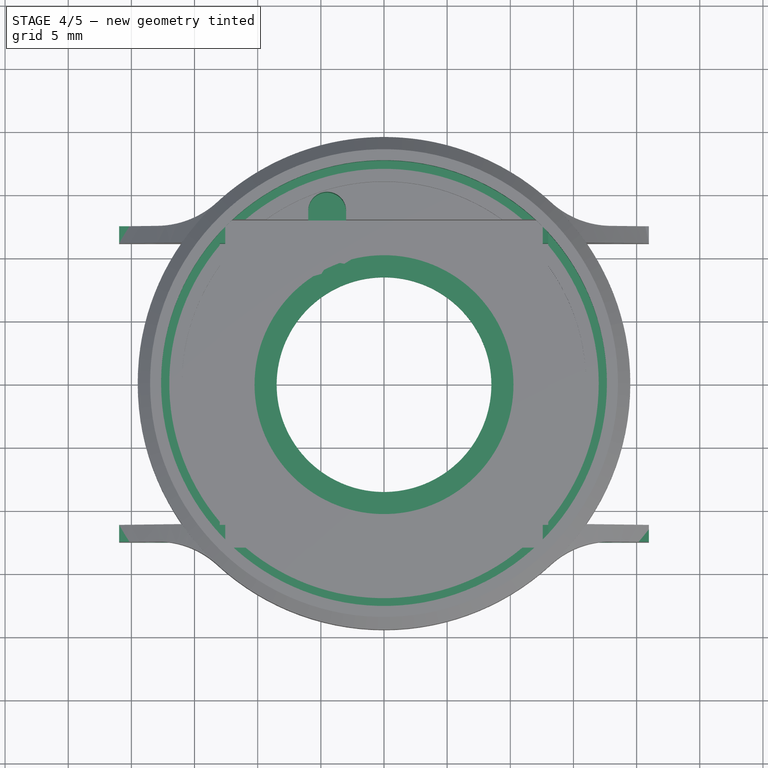
[diagram: stage 4 of 5 — top view after this stage's code; geometry added in this stage tinted green]
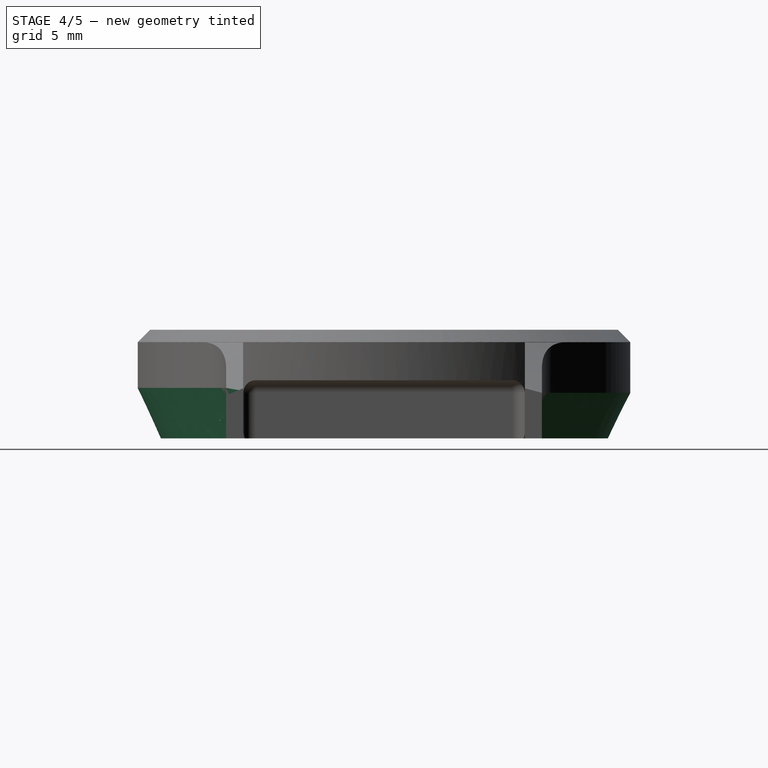
[diagram: stage 4 of 5 — right view after this stage's code; geometry added in this stage tinted green]
FEATURE [Sketcher::SketchObject] Sketch029
  ExternalGeometry = -> [Chamfer001]
  FullyConstrained = true
  MapMode = 5
  Placement = pos=(0,1.4e-15,-5.2) rot=(0,0,1;0rad)
  Support = -> [Chamfer001]
  sketch-geometry (2):
    g0: Circle CenterX=0 CenterY=0 CenterZ=0 NormalX=0 NormalY=0 NormalZ=1 AngleXU=0 Radius=8.5
    g1: Circle CenterX=0 CenterY=0 CenterZ=0 NormalX=0 NormalY=0 NormalZ=1 AngleXU=0 Radius=10.25
  constraints (4):
    c: Coincident(g0,g-1)
    c: Coincident(g1,g0)
    c: Equal(g1,g-3)
    c: Diameter(g0) = 17
FEATURE [PartDesign::Pad] Pad018
  BaseFeature = -> Chamfer001
  Direction = (0,9e-16,1)
  Length = 0.8
  Length2 = 10
  Placement = pos=(0,1e-15,-6.6) rot=(1,0,0;3.14159rad)
  Profile = -> Sketch029
  ReferenceAxis = -> Sketch029 [N_Axis]
  Reversed = true
  Type = 0
FEATURE [Sketcher::SketchObject] Sketch030
  FullyConstrained = true
  MapMode = 5
  Placement = pos=(0,9.7e-15,-1) rot=(0,0,1;0rad)
  Support = -> [Pad018]
  sketch-geometry (4):
    g0: ArcOfCircle CenterX=-4.5 CenterY=13.7 CenterZ=0 NormalX=0 NormalY=0 NormalZ=1 AngleXU=0 Radius=1.5 StartAngle=0 EndAngle=3.14159
    g1: ArcOfCircle CenterX=-4.5 CenterY=10.2 CenterZ=0 NormalX=0 NormalY=0 NormalZ=1 AngleXU=0 Radius=1.5 StartAngle=3.14159 EndAngle=6.28319
    g2: LineSegment StartX=-6 StartY=13.7 StartZ=0 EndX=-6 EndY=10.2 EndZ=0
    g3: LineSegment StartX=-3 StartY=10.2 StartZ=0 EndX=-3 EndY=13.7 EndZ=0
  constraints (10):
    c: Tangent(g0,g2) = -1.5708
    c: Tangent(g2,g1) = -1.5708
    c: Tangent(g1,g3) = -1.5708
    c: Tangent(g3,g0) = -1.5708
    c: Equal(g0,g1)
    c: Vertical(g2)
    c: DistanceX(g-2,g1) = -4.5
    c: Distance(g3) = 3.5
    c: DistanceY(g-1,g1) = 10.2
    c: Diameter(g0) = 3
FEATURE [PartDesign::Pocket] Pocket
  BaseFeature = -> Pad018
  Direction = (0,-2.2e-15,-1)
  Length = 0
  Length2 = 5
  Placement = pos=(0,1e-15,-6.6) rot=(1,0,0;3.14159rad)
  Profile = -> Sketch030
  ReferenceAxis = -> Sketch030 [N_Axis]
  Type = 3
  UpToFace = -> Pad018 [Face106]
FEATURE [Sketcher::SketchObject] Sketch031
  FullyConstrained = true
  MapMode = 5
  Placement = pos=(0,1.63e-14,2) rot=(0,0,1;0rad)
  Support = -> [Pocket]
  sketch-geometry (1):
    g0: Circle CenterX=0 CenterY=0 CenterZ=0 NormalX=0 NormalY=0 NormalZ=1 AngleXU=0 Radius=17.65
  constraints (2):
    c: Coincident(g0,g-1)
    c: Diameter(g0) = 35.3
FEATURE [PartDesign::Pocket] Pocket008
  BaseFeature = -> Pocket
  Direction = (0,-1.8e-15,-1)
  Length = 2
  Length2 = 5
  Placement = pos=(0,1e-15,-6.6) rot=(1,0,0;3.14159rad)
  Profile = -> Sketch031
  ReferenceAxis = -> Sketch031 [N_Axis]
  Type = 0
FEATURE [Sketcher::SketchObject] Sketch032
  ExternalGeometry = -> [Pocket008]
  FullyConstrained = true
  MapMode = 5
  Placement = pos=(0,1e-15,-6.6) rot=(1,0,0;3.14159rad)
  Support = -> [Pocket008]
  sketch-geometry (9):
    g0: LineSegment StartX=-20.9666 StartY=-11.5 StartZ=0 EndX=-17.9444 EndY=-11.5 EndZ=0
    g1: ArcOfCircle CenterX=0 CenterY=0 CenterZ=0 NormalX=0 NormalY=0 NormalZ=1 AngleXU=0 Radius=18.5 StartAngle=3.96851 EndAngle=5.45611
    g2: ArcOfCircle CenterX=17.9447 CenterY=-19.4994 CenterZ=0 NormalX=0 NormalY=0 NormalZ=1 AngleXU=0 Radius=8.00002 StartAngle=1.95219 EndAngle=2.31502
    g3: ArcOfCircle CenterX=17.9451 CenterY=-19.4987 CenterZ=0 NormalX=0 NormalY=0 NormalZ=1 AngleXU=0 Radius=8.00002 StartAngle=1.57085 EndAngle=1.95219
    g4: LineSegment StartX=17.9451 StartY=-11.498 StartZ=0 EndX=20.967 EndY=-11.4994 EndZ=0
    g5: ArcOfCircle CenterX=-17.944 CenterY=-19.4994 CenterZ=0 NormalX=0 NormalY=0 NormalZ=1 AngleXU=0 Radius=8.00006 StartAngle=1.1894 EndAngle=1.57079
    g6: ArcOfCircle CenterX=-17.9436 CenterY=-19.4987 CenterZ=0 NormalX=0 NormalY=0 NormalZ=1 AngleXU=0 Radius=8.00005 StartAngle=0.8269 EndAngle=1.1894
    g7: LineSegment StartX=-0.112097 StartY=-18.4095 StartZ=0 EndX=0 EndY=0 EndZ=0
    g8: ArcOfCircle CenterX=0 CenterY=0 CenterZ=0 NormalX=0 NormalY=0 NormalZ=1 AngleXU=0 Radius=18.4998 StartAngle=4.7063 EndAngle=5.45615
  constraints (24):
    c: Coincident(g0,g-3)
    c: Coincident(g0,g-4)
    c: Coincident(g1,g-6)
    c: Coincident(g1,g-7)
    c: Coincident(g2,g-8)
    c: Coincident(g2,g1)
    c: Coincident(g2,g-8)
    c: Coincident(g3,g2)
    c: Coincident(g3,g2)
    c: Coincident(g3,g-9)
    c: Coincident(g4,g3)
    c: Coincident(g4,g-9)
    c: Coincident(g5,g-5)
    c: Coincident(g5,g0)
    c: Coincident(g5,g-5)
    c: Coincident(g6,g5)
    c: Coincident(g6,g5)
    c: Coincident(g6,g1)
    c: PointOnObject(g7,g1)
    c: Coincident(g7,g1)
    c: Vertical(g7)
    c: Coincident(g8,g1)
    c: Coincident(g8,g2)
    c: Coincident(g8,g7)
FEATURE [Sketcher::SketchObject] Sketch033
  FullyConstrained = true
  MapMode = 5
  Placement = pos=(0,0,0) rot=(0.57735,0.57735,0.57735;2.0944rad)
  Support = -> [YZ_Plane005]
  sketch-geometry (3):
    g0: LineSegment StartX=20.7 StartY=0 StartZ=0 EndX=16.7 EndY=-8.7 EndZ=0
    g1: LineSegment StartX=16.7 StartY=-8.7 StartZ=0 EndX=20.7 EndY=-8.7 EndZ=0
    g2: LineSegment StartX=20.7 StartY=0 StartZ=0 EndX=20.7 EndY=-8.7 EndZ=0
  constraints (9):
    c: Coincident(g1,g0)
    c: Horizontal(g1)
    c: Coincident(g2,g0)
    c: Coincident(g2,g1)
    c: Vertical(g2)
    c: PointOnObject(g0,g-1)
    c: DistanceX(g-2,g0) = 16.7
    c: Distance(g2) = 8.7
    c: Distance(g1) = 4
FEATURE [PartDesign::SubtractivePipe] SubtractivePipe
  AuxilleryCurvelinear = true
  AuxillerySpineTangent = false
  BaseFeature = -> Pocket008
  Binormal = (0,0,0)
  Mode = 0
  Placement = pos=(0,1e-15,-6.6) rot=(1,0,0;3.14159rad)
  Profile = -> Sketch033
  Spine = -> Pocket008 [Edge116,Edge187,Edge186,Edge98,Edge198,Edge197,Edge133]
  SpineTangent = false
  Transformation = 0
  Transition = 0
FEATURE [Sketcher::SketchObject] Sketch034
  FullyConstrained = true
  MapMode = 5
  Placement = pos=(0,0,0) rot=(0.57735,0.57735,0.57735;2.0944rad)
  Support = -> [YZ_Plane005]
  sketch-geometry (3):
    g0: LineSegment StartX=-20.7 StartY=0 StartZ=0 EndX=-20.7 EndY=-8.7 EndZ=0
    g1: LineSegment StartX=-20.7 StartY=-8.7 StartZ=0 EndX=-16.7 EndY=-8.7 EndZ=0
    g2: LineSegment StartX=-16.7 StartY=-8.7 StartZ=0 EndX=-20.7 EndY=0 EndZ=0
  constraints (9):
    c: PointOnObject(g0,g-1)
    c: Vertical(g0)
    c: Coincident(g1,g0)
    c: Horizontal(g1)
    c: Coincident(g2,g1)
    c: Coincident(g2,g0)
    c: DistanceX(g-2,g1) = -16.7
    c: Distance(g1) = 4
    c: Distance(g0) = 8.7
FEATURE [PartDesign::SubtractivePipe] SubtractivePipe001
  AuxilleryCurvelinear = true
  AuxillerySpineTangent = false
  BaseFeature = -> SubtractivePipe
  Binormal = (0,0,0)
  Mode = 0
  Placement = pos=(0,1e-15,-6.6) rot=(1,0,0;3.14159rad)
  Profile = -> Sketch034
  Spine = -> SubtractivePipe [Edge186,Edge277,Edge278,Edge193,Edge195,Edge165,Edge167]
  SpineTangent = false
  Transformation = 0
  Transition = 0
FEATURE [Sketcher::SketchObject] Sketch035
  ExternalGeometry = -> [SubtractivePipe001]
  FullyConstrained = false
  MapMode = 5
  Placement = pos=(-20.9666,5.6e-15,-6.6) rot=(0.57735,0.57735,-0.57735;4.18879rad)
  Support = -> [SubtractivePipe001]
  sketch-geometry (9):
    g0: LineSegment StartX=-11.15 StartY=-3.95968 StartZ=0 EndX=-11.15 EndY=0 EndZ=0
    g1: LineSegment StartX=-11.15 StartY=0 StartZ=0 EndX=-12.5 EndY=0 EndZ=0
    g2: GeomPoint X=-11.825 Y=-3.8 Z=0
    g3: LineSegment StartX=11.15 StartY=0 StartZ=0 EndX=12.5 EndY=0 EndZ=0
    g4: LineSegment StartX=12.5 StartY=0 StartZ=0 EndX=12.5 EndY=-3.99 EndZ=0
    g5: LineSegment StartX=11.15 StartY=0 StartZ=0 EndX=11.15 EndY=-3.95968 EndZ=0
    g6: LineSegment StartX=-12.5 StartY=0 StartZ=0 EndX=-12.5 EndY=-3.99 EndZ=0
    g7: LineSegment StartX=-12.5 StartY=-3.99 StartZ=0 EndX=-11.15 EndY=-3.95968 EndZ=0
    g8: LineSegment StartX=11.15 StartY=-3.95968 StartZ=0 EndX=12.5 EndY=-3.99 EndZ=0
  constraints (21):
    c: Coincident(g0,g1)
    c: Horizontal(g1)
    c: Vertical(g0)
    c: PointOnObject(g1,g-1)
    c: Coincident(g3,g4)
    c: Horizontal(g3)
    c: Vertical(g4)
    c: PointOnObject(g3,g-1)
    c: Equal(g3,g1)
    c: Coincident(g0,g-6)
    c: Coincident(g5,g3)
    c: Vertical(g5)
    c: Equal(g5,g0)
    c: Coincident(g6,g1)
    c: Coincident(g6,g-3)
    c: Vertical(g6)
    c: Coincident(g7,g6)
    c: Coincident(g7,g0)
    c: Symmetric(g4,g6,g-2)
    c: Coincident(g8,g5)
    c: Coincident(g8,g4)
FEATURE [PartDesign::Pad] Pad019
  BaseFeature = -> SubtractivePipe001
  Direction = (-1,0,0)
  Length = 8.4
  Length2 = 10
  Placement = pos=(0,1e-15,-6.6) rot=(1,0,0;3.14159rad)
  Profile = -> Sketch035
  ReferenceAxis = -> Sketch035 [N_Axis]
  Reversed = true
  Type = 0
FEATURE [Sketcher::SketchObject] Sketch036
  ExternalGeometry = -> [Pad019]
  FullyConstrained = false
  MapMode = 5
  Placement = pos=(20.9666,1e-15,-6.6) rot=(0.57735,-0.57735,0.57735;4.18879rad)
  Support = -> [Pad019]
  sketch-geometry (8):
    g0: LineSegment StartX=-11.15 StartY=-3.95968 StartZ=0 EndX=-12.5 EndY=-3.6026 EndZ=0
    g1: LineSegment StartX=-12.5 StartY=-3.6026 StartZ=0 EndX=-12.5 EndY=0 EndZ=0
    g2: LineSegment StartX=-11.15 StartY=-3.95968 StartZ=0 EndX=-11.15 EndY=0 EndZ=0
    g3: LineSegment StartX=-11.15 StartY=0 StartZ=0 EndX=-12.5 EndY=0 EndZ=0
    g4: LineSegment StartX=11.15 StartY=6.2e-15 StartZ=0 EndX=11.15 EndY=-3.75822 EndZ=0
    g5: LineSegment StartX=11.15 StartY=-3.75822 StartZ=0 EndX=12.5 EndY=-3.99 EndZ=0
    g6: LineSegment StartX=12.5 StartY=-3.99 StartZ=0 EndX=12.5 EndY=0 EndZ=0
    g7: LineSegment StartX=12.5 StartY=0 StartZ=0 EndX=11.15 EndY=6.2e-15 EndZ=0
  constraints (19):
    c: Coincident(g0,g-5)
    c: Coincident(g0,g-4)
    c: Coincident(g1,g0)
    c: PointOnObject(g1,g-1)
    c: Vertical(g1)
    c: Coincident(g2,g0)
    c: PointOnObject(g2,g-1)
    c: Vertical(g2)
    c: Coincident(g3,g2)
    c: Coincident(g3,g1)
    c: Coincident(g4,g-3)
    c: Vertical(g4)
    c: Coincident(g5,g4)
    c: Coincident(g5,g-6)
    c: Coincident(g6,g5)
    c: PointOnObject(g6,g-1)
    c: Vertical(g6)
    c: Coincident(g7,g6)
    c: Coincident(g7,g4)
FEATURE [PartDesign::Pad] Pad020
  BaseFeature = -> Pad019
  Direction = (1,0,0)
  Length = 8.4
  Length2 = 10
  Placement = pos=(0,1e-15,-6.6) rot=(1,0,0;3.14159rad)
  Profile = -> Sketch036
  ReferenceAxis = -> Sketch036 [N_Axis]
  Reversed = true
  Type = 0
FEATURE [Sketcher::SketchObject] Sketch037
  ExternalGeometry = -> [Pad020]
  FullyConstrained = true
  MapMode = 5
  Placement = pos=(0,0,0) rot=(1,0,0;1.5708rad)
  Support = -> [XZ_Plane005]
  sketch-geometry (2):
    g0: Circle CenterX=-18.4666 CenterY=-4.6 CenterZ=0 NormalX=0 NormalY=0 NormalZ=1 AngleXU=0 Radius=0.5
    g1: Circle CenterX=18.4666 CenterY=-4.6 CenterZ=0 NormalX=0 NormalY=0 NormalZ=1 AngleXU=0 Radius=0.5
  constraints (4):
    c: Coincident(g0,g-4)
    c: Coincident(g1,g-3)
    c: Equal(g1,g-3)
    c: Equal(g-3,g0)
FEATURE [PartDesign::Pocket] Pocket009
  BaseFeature = -> Pad020
  Direction = (0,1,0)
  Length = 100
  Length2 = 100
  Placement = pos=(0,1e-15,-6.6) rot=(1,0,0;3.14159rad)
  Profile = -> Sketch037
  ReferenceAxis = -> Sketch037 [N_Axis]
  Type = 4
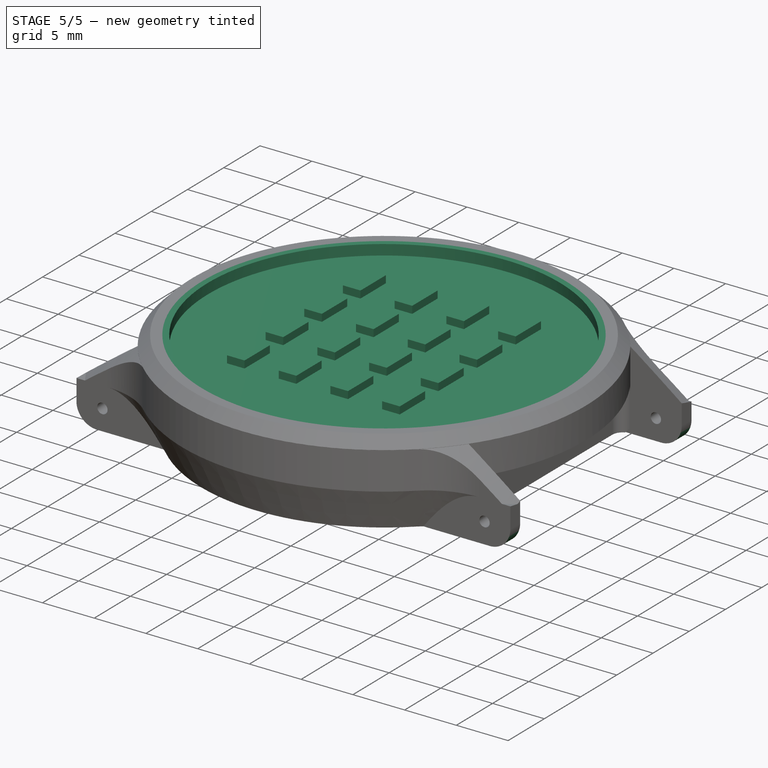
[diagram: stage 5 of 5 — iso view after this stage's code; geometry added in this stage tinted green]
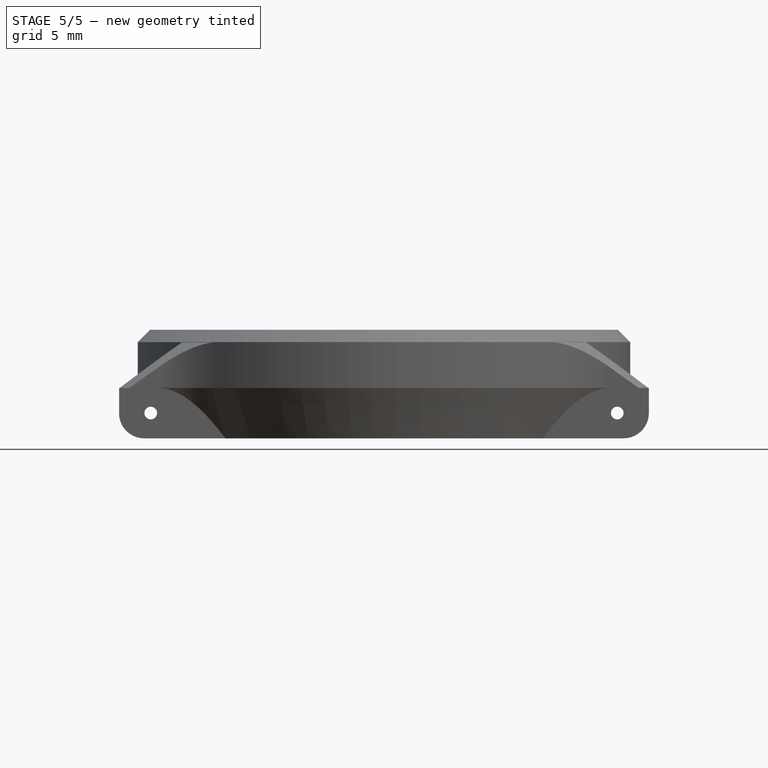
[diagram: stage 5 of 5 — front view after this stage's code; geometry added in this stage tinted green]
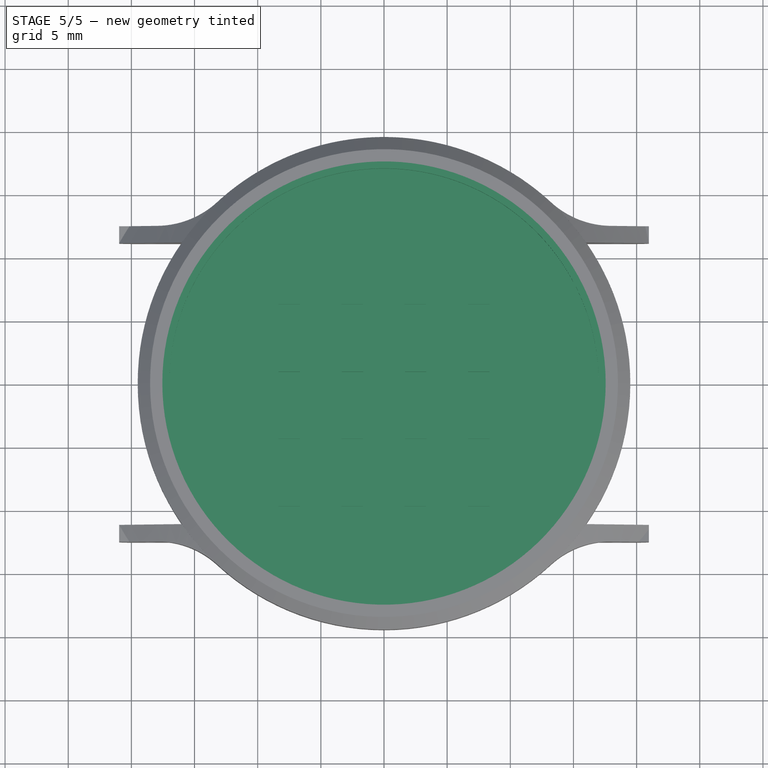
[diagram: stage 5 of 5 — top view after this stage's code; geometry added in this stage tinted green]
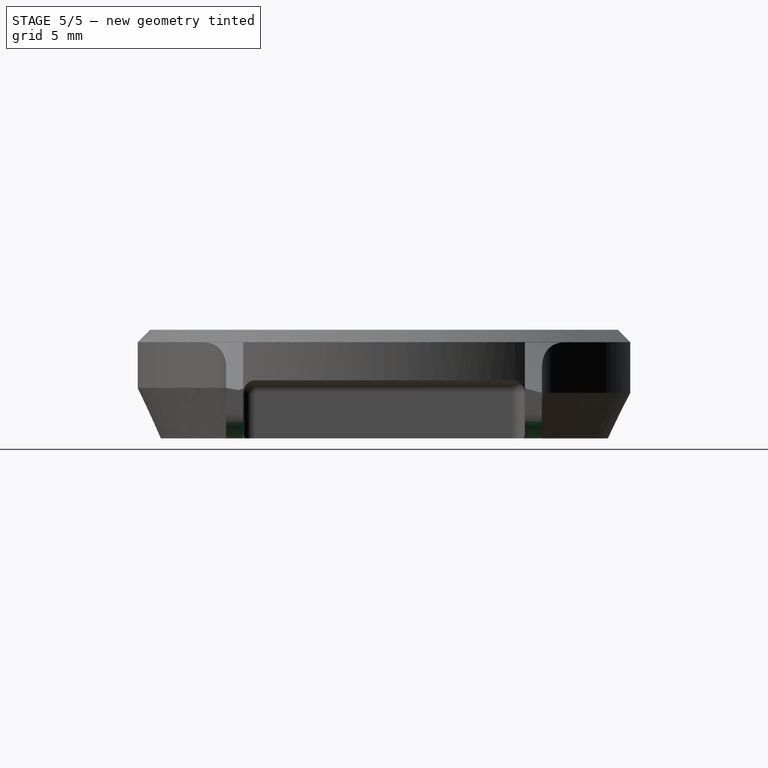
[diagram: stage 5 of 5 — right view after this stage's code; geometry added in this stage tinted green]
FEATURE [Sketcher::SketchObject] Sketch027
  FullyConstrained = true
  MapMode = 5
  Placement = pos=(0,0,1) rot=(0,0,1;0rad)
  Support = -> [Pad001]
  sketch-geometry (20):
    g0: LineSegment StartX=6.65 StartY=9.75 StartZ=0 EndX=6.65 EndY=6.25 EndZ=0
    g1: LineSegment StartX=6.65 StartY=6.25 StartZ=0 EndX=8.35 EndY=6.25 EndZ=0
    g2: LineSegment StartX=8.35 StartY=6.25 StartZ=0 EndX=8.35 EndY=9.75 EndZ=0
    g3: LineSegment StartX=8.35 StartY=9.75 StartZ=0 EndX=6.65 EndY=9.75 EndZ=0
    g4: GeomPoint X=7.5 Y=8 Z=0
    g5: LineSegment StartX=3.35 StartY=6.25 StartZ=0 EndX=3.35 EndY=9.75 EndZ=0
    g6: LineSegment StartX=3.35 StartY=9.75 StartZ=0 EndX=1.65 EndY=9.75 EndZ=0
    g7: LineSegment StartX=1.65 StartY=9.75 StartZ=0 EndX=1.65 EndY=6.25 EndZ=0
    g8: LineSegment StartX=1.65 StartY=6.25 StartZ=0 EndX=3.35 EndY=6.25 EndZ=0
    g9: GeomPoint X=2.5 Y=8 Z=0
    g10: LineSegment StartX=-6.65 StartY=9.75 StartZ=0 EndX=-6.65 EndY=6.25 EndZ=0
    g11: LineSegment StartX=-6.65 StartY=6.25 StartZ=0 EndX=-8.35 EndY=6.25 EndZ=0
    g12: LineSegment StartX=-8.35 StartY=6.25 StartZ=0 EndX=-8.35 EndY=9.75 EndZ=0
    g13: LineSegment StartX=-8.35 StartY=9.75 StartZ=0 EndX=-6.65 EndY=9.75 EndZ=0
    g14: GeomPoint X=-7.5 Y=8 Z=0
    g15: LineSegment StartX=-3.35 StartY=6.25 StartZ=0 EndX=-3.35 EndY=9.75 EndZ=0
    g16: LineSegment StartX=-3.35 StartY=9.75 StartZ=0 EndX=-1.65 EndY=9.75 EndZ=0
    g17: LineSegment StartX=-1.65 StartY=9.75 StartZ=0 EndX=-1.65 EndY=6.25 EndZ=0
    g18: LineSegment StartX=-1.65 StartY=6.25 StartZ=0 EndX=-3.35 EndY=6.25 EndZ=0
    g19: GeomPoint X=-2.5 Y=8 Z=0
  constraints (50):
    c: Coincident(g0,g1)
    c: Coincident(g1,g2)
    c: Coincident(g2,g3)
    c: Coincident(g3,g0)
    c: Horizontal(g1)
    c: Horizontal(g3)
    c: Vertical(g0)
    c: Vertical(g2)
    c: Symmetric(g1,g0,g4)
    c: Distance(g2) = 3.5
    c: Distance(g1) = 1.7
    c: DistanceY(g-1,g4) = 8
    c: DistanceX(g-2,g4) = 7.5
    c: Coincident(g5,g6)
    c: Coincident(g6,g7)
    c: Coincident(g7,g8)
    c: Coincident(g8,g5)
    c: Horizontal(g6)
    c: Horizontal(g8)
    c: Vertical(g5)
    c: Vertical(g7)
    c: Symmetric(g6,g5,g9)
    c: PointOnObject(g5,g3)
    c: PointOnObject(g5,g1)
    c: Equal(g8,g1)
    c: DistanceX(g-2,g9) = 2.5
    c: Coincident(g10,g11)
    c: Coincident(g11,g12)
    c: Coincident(g12,g13)
    c: Coincident(g13,g10)
    c: Horizontal(g11)
    c: Horizontal(g13)
    c: Vertical(g10)
    c: Vertical(g12)
    c: Symmetric(g11,g10,g14)
    c: Distance(g12) = 3.5
    c: Distance(g11) = 1.7
    c: Coincident(g15,g16)
    c: Coincident(g16,g17)
    c: Coincident(g17,g18)
    c: Coincident(g18,g15)
    c: Horizontal(g16)
    c: Horizontal(g18)
    c: Vertical(g15)
    c: Vertical(g17)
    c: Symmetric(g16,g15,g19)
    c: PointOnObject(g15,g13)
    c: Equal(g18,g11)
    c: Symmetric(g17,g7,g-2)
    c: Symmetric(g10,g0,g-2)
FEATURE [PartDesign::Pad] Pad016
  Direction = (0,0,1)
  Length = 0.7
  Length2 = 10
  Profile = -> Sketch027
  ReferenceAxis = -> Sketch027 [N_Axis]
  Type = 0
FEATURE [PartDesign::LinearPattern] LinearPattern
  BaseFeature = -> Pad016
  Direction = -> Y_Axis006
  Length = 16
  Occurrences = 4
  Originals = -> [Pad016]
  Reversed = true
FEATURE [Sketcher::SketchObject] Sketch038
  ExternalGeometry = -> [Pocket009]
  FullyConstrained = false
  MapMode = 5
  Placement = pos=(-2.7e-15,-12.5,-6.6) rot=(0,0.707107,-0.707107;3.14159rad)
  Support = -> [Pocket009]
  sketch-geometry (6):
    g0: ArcOfCircle CenterX=-18.9666 CenterY=-2 CenterZ=0 NormalX=0 NormalY=0 NormalZ=1 AngleXU=0 Radius=2 StartAngle=1.5708 EndAngle=3.14159
    g1: LineSegment StartX=-20.9666 StartY=-1.8e-15 StartZ=0 EndX=-20.9666 EndY=-2 EndZ=0
    g2: LineSegment StartX=-20.9666 StartY=-1.8e-15 StartZ=0 EndX=-18.9666 EndY=-1.8e-15 EndZ=0
    g3: ArcOfCircle CenterX=18.9811 CenterY=-2 CenterZ=0 NormalX=0 NormalY=0 NormalZ=1 AngleXU=0 Radius=2 StartAngle=0.120541 EndAngle=1.5708
    g4: LineSegment StartX=20.9666 StartY=-1.7595 StartZ=0 EndX=20.9666 EndY=0 EndZ=0
    g5: LineSegment StartX=20.9666 StartY=0 StartZ=0 EndX=18.9811 EndY=1.8e-15 EndZ=0
  constraints (15):
    c: PointOnObject(g0,g-4)
    c: Coincident(g1,g-4)
    c: Coincident(g1,g0)
    c: Coincident(g2,g1)
    c: Tangent(g2,g0) = 1.5708
    c: Tangent(g0,g-3) = 1.5708
    c: Distance(g2) = 2
    c: PointOnObject(g3,g-5)
    c: PointOnObject(g3,g-6)
    c: Horizontal(g3,g0)
    c: Coincident(g4,g3)
    c: Coincident(g4,g-6)
    c: Coincident(g5,g4)
    c: Coincident(g5,g3)
    c: Tangent(g5,g3)
FEATURE [PartDesign::Pocket] Pocket010
  BaseFeature = -> Pocket009
  Direction = (0,1,0)
  Length = 5
  Length2 = 5
  Placement = pos=(0,1e-15,-6.6) rot=(1,0,0;3.14159rad)
  Profile = -> Sketch038
  ReferenceAxis = -> Sketch038 [N_Axis]
  Type = 1
FEATURE [Sketcher::SketchObject] Sketch039
  ExternalGeometry = -> [Pocket010]
  FullyConstrained = true
  MapMode = 5
  Placement = pos=(0,1.4e-15,-5.2) rot=(0,0,1;0rad)
  Support = -> [Pocket010]
  sketch-geometry (5):
    g0: LineSegment StartX=-13 StartY=-13 StartZ=0 EndX=-13 EndY=13 EndZ=0
    g1: LineSegment StartX=-13 StartY=13 StartZ=0 EndX=13 EndY=13 EndZ=0
    g2: LineSegment StartX=13 StartY=13 StartZ=0 EndX=13 EndY=-13 EndZ=0
    g3: LineSegment StartX=13 StartY=-13 StartZ=0 EndX=-13 EndY=-13 EndZ=0
    g4: GeomPoint X=0 Y=0 Z=0
  constraints (11):
    c: Coincident(g0,g1)
    c: Coincident(g1,g2)
    c: Coincident(g2,g3)
    c: Coincident(g3,g0)
    c: Horizontal(g1)
    c: Horizontal(g3)
    c: Vertical(g0)
    c: Vertical(g2)
    c: Symmetric(g1,g0,g4)
    c: Coincident(g4,g-1)
    c: Coincident(g-3,g1)
FEATURE [PartDesign::Pocket] Pocket011
  BaseFeature = -> Pocket010
  Direction = (0,5e-16,-1)
  Length = 4
  Length2 = 5
  Placement = pos=(0,1e-15,-6.6) rot=(1,0,0;3.14159rad)
  Profile = -> Sketch039
  ReferenceAxis = -> Sketch039 [N_Axis]
  Reversed = true
  Type = 0
FEATURE [Sketcher::SketchObject] Sketch040
  ExternalGeometry = -> [Pocket011]
  FullyConstrained = true
  MapMode = 5
  Placement = pos=(0,1.27e-14,0) rot=(0,0,1;0rad)
  Support = -> [Pocket011]
  sketch-geometry (2):
    g0: Circle CenterX=0 CenterY=0 CenterZ=0 NormalX=0 NormalY=0 NormalZ=1 AngleXU=0 Radius=17.55
    g1: Circle CenterX=0 CenterY=0 CenterZ=0 NormalX=0 NormalY=0 NormalZ=1 AngleXU=0 Radius=17.65
  constraints (4):
    c: Coincident(g0,g-3)
    c: Coincident(g1,g0)
    c: Tangent(g1,g-3)
    c: Diameter(g0) = 35.1
FEATURE [PartDesign::Pad] Pad021
  BaseFeature = -> Pocket011
  Direction = (0,0,1)
  Length = 10
  Length2 = 10
  Placement = pos=(0,1e-15,-6.6) rot=(1,0,0;3.14159rad)
  Profile = -> Sketch040
  ReferenceAxis = -> Sketch040 [N_Axis]
  Type = 3
  UpToFace = -> Pocket011 [Face12]
FEATURE [Sketcher::SketchObject] Sketch041
  ExternalGeometry = -> [Pad021]
  FullyConstrained = true
  MapMode = 5
  Placement = pos=(0,9.7e-15,-1) rot=(0,0,1;0rad)
  Support = -> [Pad021]
  sketch-geometry (4):
    g0: ArcOfCircle CenterX=0 CenterY=0 CenterZ=0 NormalX=0 NormalY=0 NormalZ=1 AngleXU=0 Radius=16 StartAngle=3.76396 EndAngle=5.66082
    g1: LineSegment StartX=13 StartY=9.32738 StartZ=0 EndX=13 EndY=-9.32738 EndZ=0
    g2: LineSegment StartX=-13 StartY=9.32738 StartZ=0 EndX=-13 EndY=-9.32738 EndZ=0
    g3: ArcOfCircle CenterX=0 CenterY=0 CenterZ=0 NormalX=0 NormalY=0 NormalZ=1 AngleXU=0 Radius=16 StartAngle=0.622368 EndAngle=2.51922
  constraints (12):
    c: Coincident(g0,g-1)
    c: PointOnObject(g-3,g0)
    c: Vertical(g1)
    c: Vertical(g2)
    c: PointOnObject(g2,g-4)
    c: PointOnObject(g1,g-5)
    c: Coincident(g3,g2)
    c: Coincident(g0,g2)
    c: Equal(g0,g3)
    c: Coincident(g0,g1)
    c: Coincident(g3,g1)
    c: Coincident(g0,g3)
FEATURE [PartDesign::Pocket] Pocket012
  BaseFeature = -> Pad021
  Direction = (0,0,-1)
  Length = 0
  Length2 = 5
  Placement = pos=(0,1e-15,-6.6) rot=(1,0,0;3.14159rad)
  Profile = -> Sketch041
  ReferenceAxis = -> Sketch041 [N_Axis]
  Reversed = true
  Type = 3
  UpToFace = -> Pad021 [Face160]
FEATURE [Sketcher::SketchObject] Sketch042
  ExternalGeometry = -> [Pocket012]
  FullyConstrained = false
  MapMode = 5
  Placement = pos=(0,1.4e-15,-5.2) rot=(0,0,1;0rad)
  Support = -> [Pocket012]
  sketch-geometry (4):
    g0: ArcOfCircle CenterX=0 CenterY=9.6e-15 CenterZ=0 NormalX=0 NormalY=0 NormalZ=1 AngleXU=0 Radius=17.8966 StartAngle=2.32853 EndAngle=2.38386
    g1: LineSegment StartX=-13 StartY=12.3 StartZ=0 EndX=-13 EndY=13 EndZ=0
    g2: LineSegment StartX=-12.3505 StartY=12.952 StartZ=0 EndX=-12.3608 EndY=12.9422 EndZ=0
    g3: LineSegment StartX=-13 StartY=13 StartZ=0 EndX=-12.3 EndY=13 EndZ=0
  constraints (10):
    c: Coincident(g0,g-7)
    c: PointOnObject(g0,g-5)
    c: PointOnObject(g0,g-4)
    c: Coincident(g1,g0)
    c: Coincident(g1,g-5)
    c: PointOnObject(g2,g0)
    c: PointOnObject(g2,g0)
    c: Coincident(g3,g1)
    c: Coincident(g3,g0)
    c: Distance(g1) = 0.7
FEATURE [Sketcher::SketchObject] Sketch043
  ExternalGeometry = -> [Pocket012]
  FullyConstrained = true
  MapMode = 5
  Placement = pos=(0,1.27e-14,0) rot=(0,0,1;0rad)
  Support = -> [Pocket012]
  sketch-geometry (2):
    g0: Circle CenterX=0 CenterY=0 CenterZ=0 NormalX=0 NormalY=0 NormalZ=1 AngleXU=0 Radius=17
    g1: Circle CenterX=0 CenterY=0 CenterZ=0 NormalX=0 NormalY=0 NormalZ=1 AngleXU=0 Radius=17.55
  constraints (4):
    c: Coincident(g0,g-4)
    c: Coincident(g1,g0)
    c: Equal(g1,g-4)
    c: Diameter(g0) = 34
FEATURE [PartDesign::Pad] Pad022
  BaseFeature = -> Pocket012
  Direction = (0,0,1)
  Length = 10
  Length2 = 10
  Placement = pos=(0,1e-15,-6.6) rot=(1,0,0;3.14159rad)
  Profile = -> Sketch043
  ReferenceAxis = -> Sketch043 [N_Axis]
  Type = 3
  UpToFace = -> Pocket012 [Face12]
FEATURE [Sketcher::SketchObject] Sketch044
  ExternalGeometry = -> [Pad022]
  FullyConstrained = false
  MapMode = 5
  Placement = pos=(0,9.8e-15,0) rot=(0,0,1;0rad)
  Support = -> [Pad022]
  sketch-geometry (12):
    g0: LineSegment StartX=-13 StartY=11.5 StartZ=0 EndX=-13 EndY=13 EndZ=0
    g1: LineSegment StartX=-13 StartY=13 StartZ=0 EndX=-11.5 EndY=13 EndZ=0
    g2: ArcOfCircle CenterX=-9.59812 CenterY=9.59812 CenterZ=0 NormalX=0 NormalY=0 NormalZ=1 AngleXU=0 Radius=3.89742 StartAngle=2.08057 EndAngle=2.63181
    g3: LineSegment StartX=11.5 StartY=13 StartZ=0 EndX=13 EndY=13 EndZ=0
    g4: LineSegment StartX=13 StartY=13 StartZ=0 EndX=13 EndY=11.5 EndZ=0
    g5: ArcOfCircle CenterX=2.86462 CenterY=2.86462 CenterZ=0 NormalX=0 NormalY=0 NormalZ=1 AngleXU=0 Radius=13.3152 StartAngle=0.705656 EndAngle=0.86514
    g6: LineSegment StartX=-13 StartY=-11.5 StartZ=0 EndX=-13 EndY=-13 EndZ=0
    g7: LineSegment StartX=-13 StartY=-13 StartZ=0 EndX=-11.5 EndY=-13 EndZ=0
    g8: ArcOfCircle CenterX=-9.59812 CenterY=-9.59812 CenterZ=0 NormalX=0 NormalY=0 NormalZ=1 AngleXU=0 Radius=3.89742 StartAngle=3.65137 EndAngle=4.20261
    g9: LineSegment StartX=11.5 StartY=-13 StartZ=0 EndX=13 EndY=-13 EndZ=0
    g10: LineSegment StartX=13 StartY=-13 StartZ=0 EndX=13 EndY=-11.5 EndZ=0
    g11: ArcOfCircle CenterX=2.86462 CenterY=-2.86462 CenterZ=0 NormalX=0 NormalY=0 NormalZ=1 AngleXU=0 Radius=13.3152 StartAngle=5.41805 EndAngle=5.57753
  constraints (32):
    c: PointOnObject(g0,g-4)
    c: Vertical(g0)
    c: Coincident(g1,g0)
    c: PointOnObject(g1,g-3)
    c: Horizontal(g1)
    c: Coincident(g2,g1)
    c: Coincident(g2,g0)
    c: Equal(g0,g1)
    c: Distance(g1) = 1.5
    c: PointOnObject(g3,g-5)
    c: Coincident(g4,g3)
    c: PointOnObject(g4,g-6)
    c: Vertical(g4)
    c: Horizontal(g3)
    c: Coincident(g5,g4)
    c: Coincident(g3,g5)
    c: Equal(g4,g3)
    c: Equal(g1,g3)
    c: Vertical(g6)
    c: Coincident(g7,g6)
    c: Horizontal(g7)
    c: Coincident(g8,g7)
    c: Coincident(g8,g6)
    c: Equal(g6,g7)
    c: Distance(g7) = 1.5
    c: Coincident(g10,g9)
    c: Vertical(g10)
    c: Horizontal(g9)
    c: Coincident(g11,g10)
    c: Coincident(g9,g11)
    c: Equal(g10,g9)
    c: Equal(g7,g9)
FEATURE [PartDesign::Pad] Pad023
  BaseFeature = -> Pad022
  Direction = (0,0,1)
  Length = 10
  Length2 = 10
  Placement = pos=(0,1e-15,-6.6) rot=(1,0,0;3.14159rad)
  Profile = -> Sketch044
  ReferenceAxis = -> Sketch044 [N_Axis]
  Reversed = true
  Type = 3
  UpToFace = -> Pad022 [Face148]
FEATURE [PartDesign::Body] Body005  label="watch 3"
  Group = -> [DatumPlane006,Sketch016,Pad012,Sketch017,Pad013,Mirrored002,Sketch018,Pocket002,Sketch019,Pad014,Fillet005,Sketch020,Pocket003,Sketch021,Pocket004,Fillet006,Fillet007,Fillet008,Chamfer,Sketch022,Pad015,Sketch023,Groove002,Sketch024,Pocket005,Sketch025,Pocket006,Sketch026,Pocket007,Sketch028,Pad017,Chamfer001,Sketch029,Pad018,Sketch030,Pocket,Sketch031,Pocket008,Sketch032,Sketch033,SubtractivePipe,+21 more]
  Origin = -> Origin005
  Tip = -> Pad023
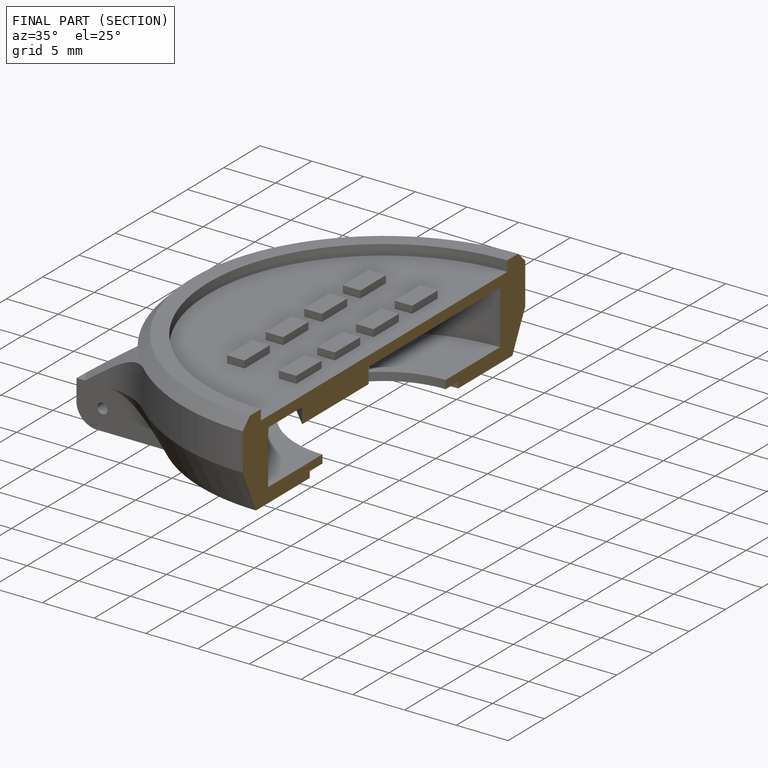
[diagram: finished part — half-section view (interior)]
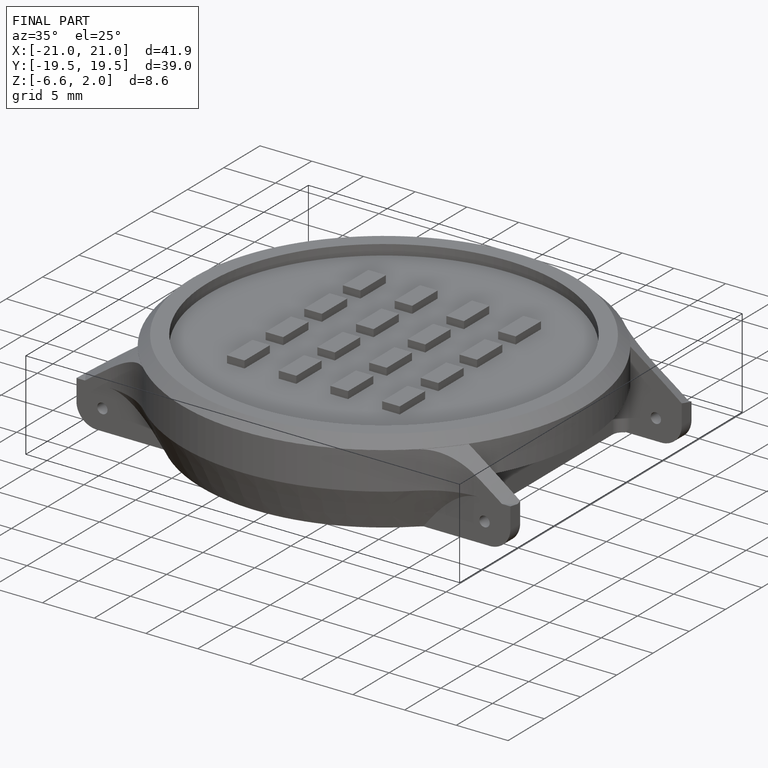
[diagram: finished part — iso view with bounding-box wireframe]
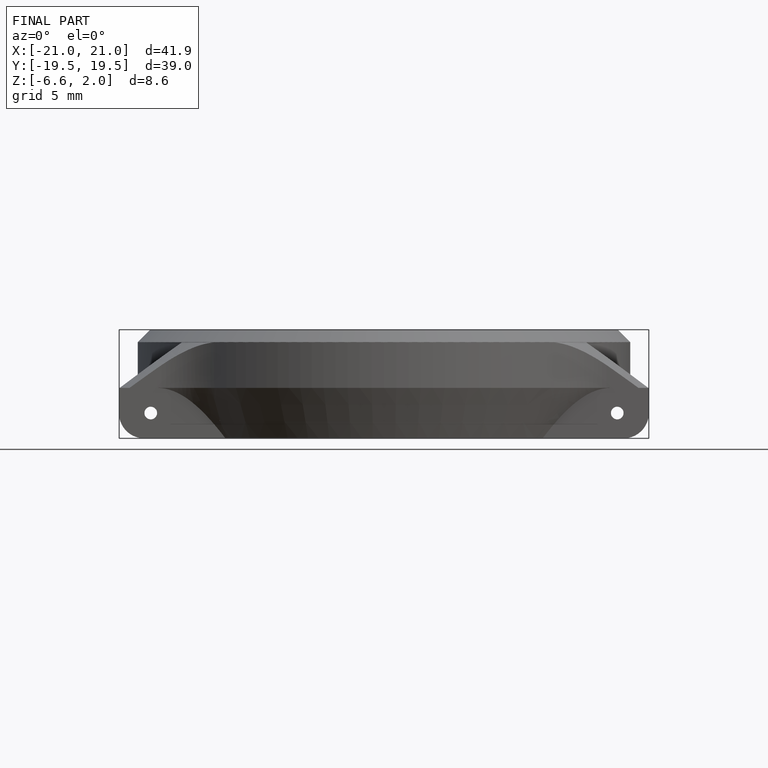
[diagram: finished part — front view with bounding-box wireframe]
